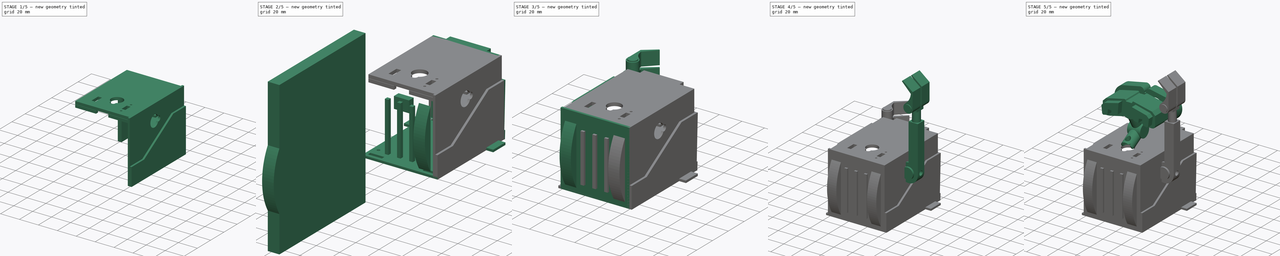
[diagram: build sequence overview — one tinted view per stage of 5, left to right]
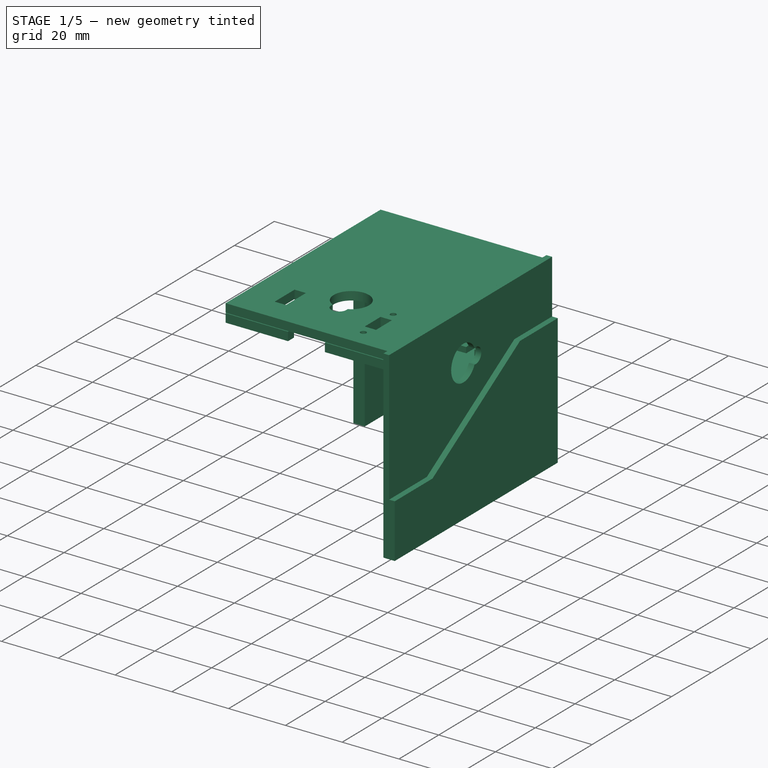
[diagram: stage 1 of 5 — iso view after this stage's code; geometry added in this stage tinted green]
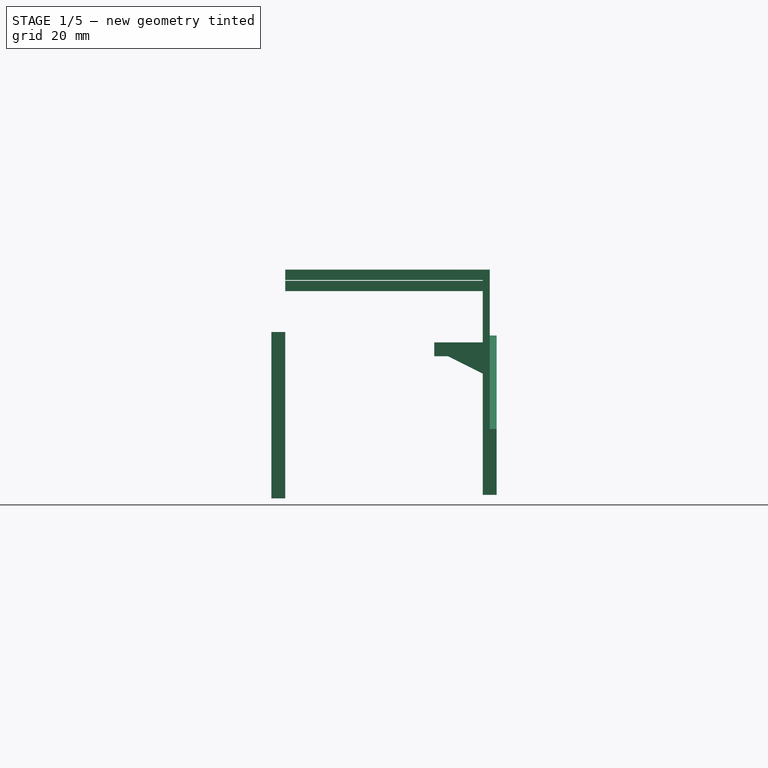
[diagram: stage 1 of 5 — front view after this stage's code; geometry added in this stage tinted green]
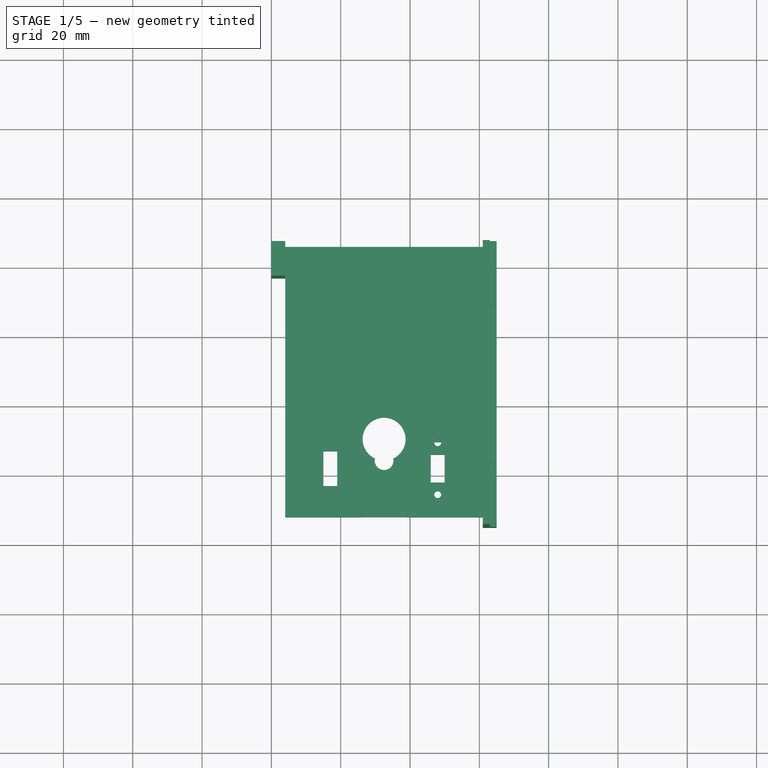
[diagram: stage 1 of 5 — top view after this stage's code; geometry added in this stage tinted green]
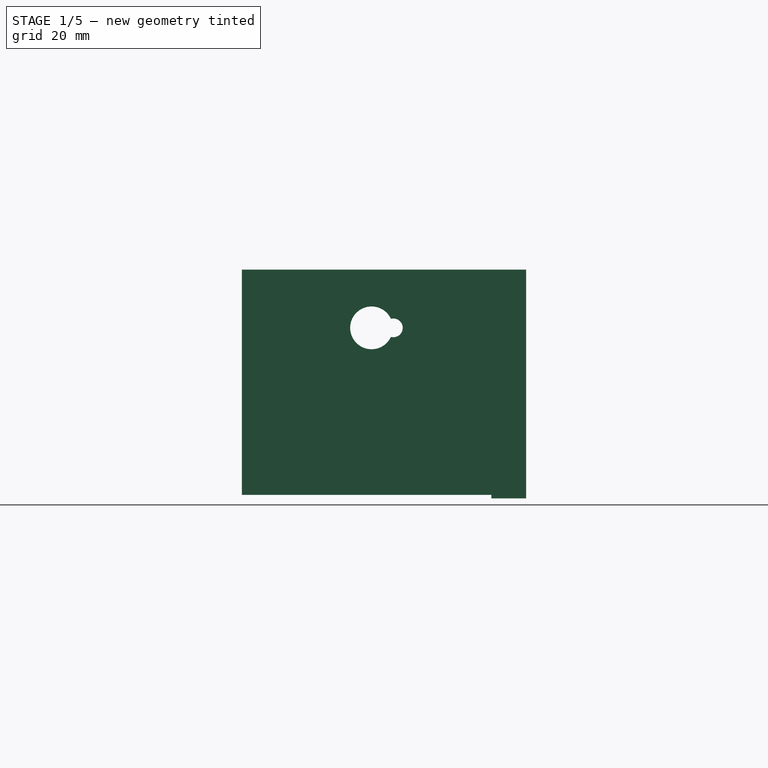
[diagram: stage 1 of 5 — right view after this stage's code; geometry added in this stage tinted green]
FCSTD DOCUMENT  (FreeCAD 1.0R38641 +468 (Git))
Label: zumo-wall-e
License: All rights reserved
LicenseURL: http://en.wikipedia.org/wiki/All_rights_reserved
objects: Part::Box×39, Part::Cut×31, Part::Extrusion×26, Sketcher::SketchObject×21, Part::Cylinder×18, Part::Feature×17, App::DocumentObjectGroup×17, Part::MultiFuse×15, App::Part×2, Part::Mirroring×2, PartDesign::Pad×1
note: 193 computed .brp shape members not serialized (recipe doc carries the construction recipe); baked Part::Feature solids carry a one-line shape summary decoded from their .brp

FEATURE [Part::Box] Box009  label="Cube009"
  AttacherType = Attacher::AttachEngine3D
  Height = 65
  Length = 4
  Placement = pos=(0,-75,0) rot=(0,0,1;0rad)
  Width = 82
FEATURE [Part::Box] Box013  label="back hole"
  AttacherType = Attacher::AttachEngine3D
  Height = 10
  Length = 10
  Placement = pos=(2,-67,0) rot=(0,0,1;0rad)
  Width = 10
FEATURE [Part::Feature] Fusion007001  label="Servo-sg90-Top"
  Placement = pos=(32.5,-67,38.3) rot=(0,0,1;0rad)
  shape: bbox 11.8 x 32.4 x 29.9 mm, 77 faces (baked)
FEATURE [Part::Box] Box020  label="servo platform"
  AttacherType = Attacher::AttachEngine3D
  Height = 2
  Length = 14
  Placement = pos=(4,-51,40) rot=(0,0,1;0rad)
  Width = 37
FEATURE [Sketcher::SketchObject] Sketch001
  ArcFitTolerance = 0
  AttachmentSupport = -> [Box020]
  FullyConstrained = true
  MakeInternals = false
  MapMode = 3
  Placement = pos=(4,-51,40) rot=(1,0,0;1.5708rad)
  sketch-geometry (3):
    g0: LineSegment StartX=0 StartY=0 StartZ=0 EndX=10 EndY=0 EndZ=0
    g1: LineSegment StartX=10 StartY=0 StartZ=0 EndX=0 EndY=-5 EndZ=0
    g2: LineSegment StartX=0 StartY=-5 StartZ=0 EndX=0 EndY=0 EndZ=0
  constraints (8):
    c: Coincident(g0,g-1)
    c: PointOnObject(g0,g-1)
    c: Coincident(g1,g0)
    c: PointOnObject(g1,g-2)
    c: Coincident(g2,g1)
    c: Coincident(g2,g0)
    c: Distance(g0,g0) = 10
    c: Distance(g0,g1) = 5
FEATURE [Part::Extrusion] Extrude007  label="renfort support servo"
  Base = -> Sketch001
  Dir = (0,-1,2e-16)
  DirMode = 2
  FaceMakerClass = Part::FaceMakerBullseye
  FaceMakerMode = 3
  LengthFwd = 37
  LengthRev = 0
  Placement = pos=(0,37,0) rot=(0,0,1;0rad)
  Solid = true
  Symmetric = false
FEATURE [Sketcher::SketchObject] Sketch002
  ArcFitTolerance = 0
  AttachmentSupport = -> [Box020]
  FullyConstrained = true
  MakeInternals = false
  MapMode = 5
  Placement = pos=(4,-51,42) rot=(0,0,1;0rad)
  sketch-geometry (21):
    g0: LineSegment StartX=0 StartY=0 StartZ=0 EndX=0 EndY=7.3 EndZ=0
    g1: LineSegment StartX=0 StartY=7.3 StartZ=0 EndX=5.9 EndY=7.3 EndZ=0
    g2: LineSegment StartX=5.9 StartY=7.3 StartZ=0 EndX=5.9 EndY=2.1 EndZ=0
    g3: LineSegment StartX=5.9 StartY=2.1 StartZ=0 EndX=8.8 EndY=2.1 EndZ=0
    g4: LineSegment StartX=8.8 StartY=2.1 StartZ=0 EndX=8.8 EndY=7.3 EndZ=0
    g5: LineSegment StartX=8.8 StartY=7.3 StartZ=0 EndX=14 EndY=7.3 EndZ=0
    g6: LineSegment StartX=14 StartY=7.3 StartZ=0 EndX=14 EndY=0 EndZ=0
    g7: LineSegment StartX=14 StartY=0 StartZ=0 EndX=0 EndY=0 EndZ=0
    g8: LineSegment [constr] StartX=5.9 StartY=7.3 StartZ=0 EndX=8.8 EndY=7.3 EndZ=0
    g9: LineSegment [constr] StartX=14 StartY=7.3 StartZ=0 EndX=14 EndY=30.2 EndZ=0
    g10: LineSegment [constr] StartX=8.8 StartY=7.3 StartZ=0 EndX=8.8 EndY=30.2 EndZ=0
    g11: LineSegment StartX=14 StartY=30.2 StartZ=0 EndX=8.8 EndY=30.2 EndZ=0
    g12: LineSegment StartX=14 StartY=30.2 StartZ=0 EndX=14 EndY=37 EndZ=0
    g13: LineSegment StartX=14 StartY=37 StartZ=0 EndX=0 EndY=37 EndZ=0
    g14: LineSegment [constr] StartX=8.8 StartY=30.2 StartZ=0 EndX=5.9 EndY=30.2 EndZ=0
    g15: LineSegment StartX=5.9 StartY=30.2 StartZ=0 EndX=0 EndY=30.2 EndZ=0
    g16: LineSegment StartX=0 StartY=30.2 StartZ=0 EndX=0 EndY=37 EndZ=0
    g17: LineSegment StartX=5.9 StartY=30.2 StartZ=0 EndX=5.9 EndY=35.4 EndZ=0
    g18: LineSegment StartX=5.9 StartY=35.4 StartZ=0 EndX=8.8 EndY=35.4 EndZ=0
    g19: LineSegment StartX=8.8 StartY=35.4 StartZ=0 EndX=8.8 EndY=30.2 EndZ=0
    g20: LineSegment [constr] StartX=5.9 StartY=7.3 StartZ=0 EndX=5.9 EndY=30.2 EndZ=0
  constraints (58):
    c: Coincident(g0,g-1)
    c: PointOnObject(g0,g-2)
    c: Coincident(g1,g0)
    c: Horizontal(g1)
    c: Coincident(g2,g1)
    c: Vertical(g2)
    c: Coincident(g3,g2)
    c: Horizontal(g3)
    c: Vertical(g4)
    c: Coincident(g5,g4)
    c: Horizontal(g5)
    c: Coincident(g6,g5)
    c: PointOnObject(g6,g-1)
    c: Vertical(g6)
    c: Coincident(g7,g6)
    c: Coincident(g7,g0)
    c: Distance(g0,g6) = 14
    c: Coincident(g3,g4)
    c: Coincident(g8,g1)
    c: Coincident(g8,g4)
    c: Horizontal(g8)
    c: Distance(g5,g6) = 7.3
    c: Distance(g3,g6) = 5.2
    c: Distance(g4,g3) = 5.2
    c: Distance(g3,g2) = 2.9
    c: Coincident(g9,g5)
    c: Vertical(g9)
    c: Distance(g5,g9) = 22.9
    c: Coincident(g10,g4)
    c: Vertical(g10)
    c: Coincident(g11,g9)
    c: Horizontal(g11)
    c: Coincident(g10,g11)
    c: Coincident(g12,g11)
    c: Vertical(g12)
    c: Coincident(g13,g12)
    c: PointOnObject(g13,g-2)
    c: Horizontal(g13)
    c: Distance(g12,g11) = 6.8
    c: Coincident(g14,g11)
    c: Horizontal(g14)
    c: Coincident(g15,g14)
    c: PointOnObject(g15,g-2)
    c: Horizontal(g15)
    c: PointOnObject(g16,g15)
    c: Coincident(g16,g13)
    c: Vertical(g16)
    c: Coincident(g17,g15)
    c: Vertical(g17)
    c: Coincident(g18,g17)
    c: Horizontal(g18)
    c: Coincident(g19,g18)
    c: Coincident(g19,g11)
    c: Vertical(g19)
    c: Coincident(g20,g1)
    c: Coincident(g20,g15)
    c: Vertical(g20)
    c: Equal(g19,g4)
FEATURE [Part::Extrusion] Extrude008  label="fixation servo"
  Base = -> Sketch002
  Dir = (0,0,1)
  DirMode = 2
  FaceMakerClass = Part::FaceMakerBullseye
  FaceMakerMode = 3
  LengthFwd = 2
  LengthRev = 0
  Solid = true
  Symmetric = false
FEATURE [Sketcher::SketchObject] Sketch003
  ArcFitTolerance = 0
  FullyConstrained = false
  MakeInternals = false
  MapMode = 5
  Placement = pos=(1.8,-21,48.2) rot=(0.707107,0,-0.707107;3.14159rad)
  sketch-geometry (6):
    g0: Circle [constr] CenterX=0 CenterY=16.5916 CenterZ=0 NormalX=0 NormalY=0 NormalZ=1 AngleXU=0 Radius=6.2
    g1: Circle [constr] CenterX=0 CenterY=10.2965 CenterZ=0 NormalX=0 NormalY=0 NormalZ=1 AngleXU=0 Radius=2.7
    g2: GeomPoint [constr] X=5.99479 Y=15.0097 Z=0
    g3: GeomPoint [constr] X=2.69398 Y=10.1164 Z=0
    g4: ArcOfCircle CenterX=0 CenterY=10.2968 CenterZ=0 NormalX=0 NormalY=0 NormalZ=1 AngleXU=0 Radius=2.69992 StartAngle=2.87822 EndAngle=6.54656
    g5: ArcOfCircle CenterX=0 CenterY=16.5916 CenterZ=0 NormalX=0 NormalY=0 NormalZ=1 AngleXU=0 Radius=6.16968 StartAngle=5.14861 EndAngle=10.5593
  constraints (11):
    c: PointOnObject(g0,g-2)
    c: PointOnObject(g2,g0)
    c: Distance(g0,g2) = 6.2
    c: PointOnObject(g3,g1)
    c: PointOnObject(g1,g-2)
    c: Distance(g1,g3) = 2.7
    c: PointOnObject(g4,g-2)
    c: PointOnObject(g4,g1)
    c: Coincident(g5,g0)
    c: Coincident(g5,g4)
    c: Coincident(g5,g4)
FEATURE [Part::Extrusion] Extrude009  label="servo hole"
  Base = -> Sketch003
  Dir = (-1,0,-2e-16)
  DirMode = 2
  FaceMakerClass = Part::FaceMakerBullseye
  FaceMakerMode = 3
  LengthFwd = -4
  LengthRev = 0
  Solid = true
  Symmetric = false
FEATURE [Part::MultiFuse] Fusion007003  label="support servo"
  Shapes = -> [Box020,Extrude008,Extrude007]
FEATURE [App::DocumentObjectGroup] Group003  label="Back"
  Group = -> [Box014,Cut005,Cut006,Box017,Box018,Box019,Box026]
FEATURE [App::DocumentObjectGroup] Group005  label="Bottom"
  Group = -> [Extrude]
FEATURE [Sketcher::SketchObject] Sketch007
  ArcFitTolerance = 0
  AttachmentSupport = -> [Box014]
  FullyConstrained = false
  MakeInternals = false
  MapMode = 5
  Placement = pos=(2,-75,65) rot=(0,0,1;0rad)
  sketch-geometry (15):
    g0: LineSegment StartX=2 StartY=2 StartZ=0 EndX=59 EndY=2 EndZ=0
    g1: LineSegment StartX=59 StartY=2 StartZ=0 EndX=59 EndY=80 EndZ=0
    g2: LineSegment StartX=59 StartY=80 StartZ=0 EndX=2 EndY=80 EndZ=0
    g3: LineSegment StartX=2 StartY=80 StartZ=0 EndX=2 EndY=2 EndZ=0
    g4: LineSegment [constr] StartX=2 StartY=2 StartZ=0 EndX=0 EndY=2 EndZ=0
    g5: LineSegment [constr] StartX=2 StartY=2 StartZ=0 EndX=2 EndY=0 EndZ=0
    g6: Circle [constr] CenterX=30.53 CenterY=24.527 CenterZ=0 NormalX=0 NormalY=0 NormalZ=1 AngleXU=0 Radius=6.2
    g7: GeomPoint [constr] X=36.7286 Y=24.3957 Z=0
    g8: LineSegment [constr] StartX=30.53 StartY=24.527 StartZ=0 EndX=30.53 EndY=18.2993 EndZ=0
    g9: Circle [constr] CenterX=30.53 CenterY=18.2993 CenterZ=0 NormalX=0 NormalY=0 NormalZ=1 AngleXU=0 Radius=2.7
    g10: GeomPoint [constr] X=33.052 Y=17.3352 Z=0
    g11: GeomPoint [constr] X=27.9005 Y=18.9122 Z=0
    g12: GeomPoint [constr] X=33.1595 Y=18.9122 Z=0
    g13: ArcOfCircle CenterX=30.53 CenterY=24.527 CenterZ=0 NormalX=0 NormalY=0 NormalZ=1 AngleXU=0 Radius=6.2 StartAngle=5.15037 EndAngle=10.5576
    g14: ArcOfCircle CenterX=30.53 CenterY=18.2993 CenterZ=0 NormalX=0 NormalY=0 NormalZ=1 AngleXU=0 Radius=2.7 StartAngle=2.91257 EndAngle=6.5122
  constraints (34):
    c: Coincident(g0,g1)
    c: Coincident(g1,g2)
    c: Coincident(g2,g3)
    c: Coincident(g3,g0)
    c: Horizontal(g0)
    c: Horizontal(g2)
    c: Vertical(g1)
    c: Vertical(g3)
    c: Coincident(g4,g0)
    c: PointOnObject(g4,g-2)
    c: Horizontal(g4)
    c: Coincident(g5,g0)
    c: PointOnObject(g5,g-1)
    c: Vertical(g5)
    c: Distance(g4) = 2
    c: Distance(g0,g5) = 2
    c: Distance(g0,g0) = 57
    c: Distance(g0,g1) = 78
    c: PointOnObject(g7,g6)
    c: Distance(g6,g7) = 6.2
    c: Coincident(g8,g6)
    c: Vertical(g8)
    c: Coincident(g9,g8)
    c: PointOnObject(g10,g9)
    c: Distance(g9,g10) = 2.7
    c: PointOnObject(g11,g6)
    c: PointOnObject(g11,g9)
    c: PointOnObject(g12,g6)
    c: PointOnObject(g12,g9)
    c: Coincident(g13,g6)
    c: Coincident(g13,g12)
    c: Coincident(g14,g8)
    c: Coincident(g14,g13)
    c: Coincident(g14,g13)
FEATURE [Part::Extrusion] Extrude013
  Base = -> Sketch007
  Dir = (0,0,1)
  DirMode = 2
  FaceMakerClass = Part::FaceMakerBullseye
  FaceMakerMode = 3
  LengthFwd = -3
  LengthRev = 0
  Solid = true
  Symmetric = false
FEATURE [Sketcher::SketchObject] Sketch009
  ArcFitTolerance = 0
  AttachmentSupport = -> [Box014]
  FullyConstrained = false
  MakeInternals = false
  MapMode = 5
  Placement = pos=(2,-75,65) rot=(0,0,1;0rad)
  sketch-geometry (20):
    g0: LineSegment StartX=2 StartY=2 StartZ=0 EndX=59 EndY=2 EndZ=0
    g1: LineSegment StartX=59 StartY=2 StartZ=0 EndX=59 EndY=80 EndZ=0
    g2: LineSegment StartX=59 StartY=80 StartZ=0 EndX=2 EndY=80 EndZ=0
    g3: LineSegment StartX=2 StartY=80 StartZ=0 EndX=2 EndY=2 EndZ=0
    g4: LineSegment [constr] StartX=2 StartY=2 StartZ=0 EndX=0 EndY=2 EndZ=0
    g5: LineSegment [constr] StartX=2 StartY=2 StartZ=0 EndX=2 EndY=0 EndZ=0
    g6: Circle [constr] CenterX=30.53 CenterY=24.527 CenterZ=0 NormalX=0 NormalY=0 NormalZ=1 AngleXU=0 Radius=6.2
    g7: GeomPoint [constr] X=36.7286 Y=24.3957 Z=0
    g8: Circle [constr] CenterX=30.53 CenterY=18.2993 CenterZ=0 NormalX=0 NormalY=0 NormalZ=1 AngleXU=0 Radius=2.7
    g9: GeomPoint [constr] X=33.052 Y=17.3352 Z=0
    g10: GeomPoint [constr] X=27.9005 Y=18.9122 Z=0
    g11: GeomPoint [constr] X=33.1595 Y=18.9122 Z=0
    g12: LineSegment StartX=5 StartY=5 StartZ=0 EndX=56 EndY=5 EndZ=0
    g13: LineSegment StartX=56 StartY=5 StartZ=0 EndX=56 EndY=77 EndZ=0
    g14: LineSegment StartX=56 StartY=77 StartZ=0 EndX=5 EndY=77 EndZ=0
    g15: LineSegment StartX=5 StartY=77 StartZ=0 EndX=5 EndY=5 EndZ=0
    g16: LineSegment [constr] StartX=5 StartY=5 StartZ=0 EndX=5 EndY=2 EndZ=0
    g17: LineSegment [constr] StartX=5 StartY=5 StartZ=0 EndX=2 EndY=5 EndZ=0
    g18: LineSegment [constr] StartX=56 StartY=77 StartZ=0 EndX=56 EndY=80 EndZ=0
    g19: LineSegment [constr] StartX=56 StartY=77 StartZ=0 EndX=59 EndY=77 EndZ=0
  constraints (50):
    c: Coincident(g0,g1)
    c: Coincident(g1,g2)
    c: Coincident(g2,g3)
    c: Coincident(g3,g0)
    c: Horizontal(g0)
    c: Horizontal(g2)
    c: Vertical(g1)
    c: Vertical(g3)
    c: Coincident(g4,g0)
    c: PointOnObject(g4,g-2)
    c: Horizontal(g4)
    c: Coincident(g5,g0)
    c: PointOnObject(g5,g-1)
    c: Vertical(g5)
    c: Distance(g4) = 2
    c: Distance(g0,g5) = 2
    c: Distance(g0,g0) = 57
    c: Distance(g0,g1) = 78
    c: PointOnObject(g7,g6)
    c: Distance(g6,g7) = 6.2
    c: PointOnObject(g9,g8)
    c: Distance(g8,g9) = 2.7
    c: PointOnObject(g10,g6)
    c: PointOnObject(g10,g8)
    c: PointOnObject(g11,g6)
    c: PointOnObject(g11,g8)
    c: Coincident(g12,g13)
    c: Coincident(g13,g14)
    c: Coincident(g14,g15)
    c: Coincident(g15,g12)
    c: Horizontal(g12)
    c: Horizontal(g14)
    c: Vertical(g13)
    c: Vertical(g15)
    c: Coincident(g16,g12)
    c: PointOnObject(g16,g0)
    c: Vertical(g16)
    c: Distance(g12,g16) = 3
    c: Coincident(g17,g12)
    c: PointOnObject(g17,g3)
    c: Horizontal(g17)
    c: Distance(g17,g12) = 3
    c: Coincident(g18,g13)
    c: PointOnObject(g18,g2)
    c: Vertical(g18)
    c: Coincident(g19,g13)
    c: PointOnObject(g19,g1)
    c: Horizontal(g19)
    c: Distance(g13,g19) = 3
    c: Distance(g18,g13) = 3
FEATURE [Part::Extrusion] Extrude014
  Base = -> Sketch009
  Dir = (0,0,1)
  DirMode = 2
  FaceMakerClass = Part::FaceMakerBullseye
  FaceMakerMode = 3
  LengthFwd = 3
  LengthRev = 0
  Placement = pos=(0,0,-6.2) rot=(0,0,1;0rad)
  Solid = true
  Symmetric = false
FEATURE [Part::Box] Box029  label="Cube029"
  AttacherType = Attacher::AttachEngine3D
  Height = 48
  Length = 4
  Placement = pos=(0,-3,-1) rot=(0,0,1;0rad)
  Width = 10
FEATURE [App::DocumentObjectGroup] Group  label="Front Wall-E"
  Group = -> [Group002,Cut014]
FEATURE [Sketcher::SketchObject] Sketch011
  ArcFitTolerance = 1e-06
  FullyConstrained = false
  MakeInternals = false
  MapMode = 5
  Placement = pos=(0,-75,0) rot=(0.57735,-0.57735,-0.57735;2.0944rad)
  sketch-geometry (9):
    g0: LineSegment [constr] StartX=-106.179 StartY=46 StartZ=0 EndX=23.7762 EndY=46 EndZ=0
    g1: LineSegment [constr] StartX=-82 StartY=-6.60203 StartZ=0 EndX=-82 EndY=68.9632 EndZ=0
    g2: LineSegment StartX=-82 StartY=46 StartZ=0 EndX=-63 EndY=46 EndZ=0
    g3: LineSegment [constr] StartX=0 StartY=-1e-16 StartZ=0 EndX=0 EndY=19 EndZ=0
    g4: LineSegment StartX=0 StartY=19 StartZ=0 EndX=-19 EndY=19 EndZ=0
    g5: LineSegment StartX=-63 StartY=46 StartZ=0 EndX=-19 EndY=19 EndZ=0
    g6: LineSegment StartX=0 StartY=19 StartZ=0 EndX=0 EndY=65 EndZ=0
    g7: LineSegment StartX=0 StartY=65 StartZ=0 EndX=-82 EndY=65 EndZ=0
    g8: LineSegment StartX=-82 StartY=65 StartZ=0 EndX=-82 EndY=46 EndZ=0
  constraints (25):
    c: Horizontal(g0)
    c: DistanceY(g-1,g0) = 46
    c: Vertical(g1)
    c: DistanceX(g1,g-1) = 82
    c: Horizontal(g2)
    c: PointOnObject(g2,g0)
    c: PointOnObject(g2,g1)
    c: Distance(g2) = 19
    c: PointOnObject(g3,g-1)
    c: PointOnObject(g3,g-2)
    c: PointOnObject(g3,g-2)
    c: Distance(g3) = 19
    c: Coincident(g4,g3)
    c: Horizontal(g4)
    c: DistanceX(g4,g4) = 19
    c: Coincident(g5,g2)
    c: Coincident(g5,g4)
    c: Coincident(g6,g3)
    c: PointOnObject(g6,g-2)
    c: Distance(g6) = 46
    c: Coincident(g7,g6)
    c: PointOnObject(g7,g1)
    c: Horizontal(g7)
    c: Coincident(g8,g7)
    c: Coincident(g8,g2)
FEATURE [PartDesign::Pad] Pad001
  Direction = (-1,0,0)
  Length = 2
  Length2 = 10
  Placement = pos=(0,-75,0) rot=(0.57735,-0.57735,-0.57735;2.0944rad)
  Profile = -> Sketch011
  ReferenceAxis = -> Sketch011 [N_Axis]
  Refine = true
  Reversed = true
  Suppressed = false
  Type = 0
FEATURE [Part::Cut] Cut  label="Side"
  Base = -> Box009
  Tool = -> Pad001
FEATURE [Part::Cut] Cut015
  Base = -> Cut
  Tool = -> Box013
FEATURE [Part::Cut] Cut016
  Base = -> Cut015
  Tool = -> Extrude009
FEATURE [App::DocumentObjectGroup] Group001  label="Side Left"
  Group = -> [Fusion007003,Cut016]
FEATURE [Part::Mirroring] Part__Mirroring001  label="support servo (Mirror #2)"
  Base = (0,0,0)
  Normal = (1,0,0)
  Placement = pos=(65,0,0) rot=(0,0,1;0rad)
  Source = -> Fusion007003
FEATURE [Part::Mirroring] Part__Mirroring002  label="Cut016 (Mirror #3)"
  Base = (0,0,0)
  Normal = (1,0,0)
  Placement = pos=(65,0,0) rot=(0,0,1;0rad)
  Source = -> Cut016
FEATURE [App::DocumentObjectGroup] Group013  label="Neck"
  Group = -> [Cylinder004,Cylinder003,Cut024]
FEATURE [Part::Box] Box035  label="Cube035"
  AttacherType = Attacher::AttachEngine3D
  Height = 10
  Length = 4
  Placement = pos=(15,-64,60) rot=(0,0,1;0rad)
  Width = 10
FEATURE [Part::Cut] Cut025
  Base = -> Extrude013
  Tool = -> Box035
FEATURE [App::DocumentObjectGroup] Group015  label="Arm Right"
  Group = -> [Cut033,Pocket002004]
FEATURE [Part::Box] Box044  label="Cube044"
  AttacherType = Attacher::AttachEngine3D
  Height = 10
  Length = 13
  Placement = pos=(26,-73,56) rot=(0,0,1;0rad)
  Width = 7
FEATURE [Part::Cut] Cut034
  Base = -> Extrude014
  Tool = -> Box044
FEATURE [App::DocumentObjectGroup] Group007  label="Top"
  Group = -> [Cut034]
FEATURE [App::DocumentObjectGroup] Group016  label="Body"
  Group = -> [Group,Group001,Group004,Group003,Group005,Group007]
FEATURE [Part::Box] Box045  label="Cube045"
  AttacherType = Attacher::AttachEngine3D
  Height = 10
  Length = 4
  Placement = pos=(46,-63,60) rot=(0,0,1;0rad)
  Width = 8
FEATURE [Part::Cut] Cut035
  Base = -> Cut025
  Tool = -> Box045
FEATURE [Part::Cylinder] Cylinder016
  Angle = 360
  AttacherType = Attacher::AttachEngine3D
  FirstAngle = 0
  Height = 10
  Placement = pos=(48,-66.5,58) rot=(0,0,1;0rad)
  Radius = 1
  SecondAngle = 0
FEATURE [Part::Cylinder] Cylinder017
  Angle = 360
  AttacherType = Attacher::AttachEngine3D
  FirstAngle = 0
  Height = 10
  Placement = pos=(48,-51.5,58) rot=(0,0,1;0rad)
  Radius = 1
  SecondAngle = 0
FEATURE [Part::Cut] Cut036
  Base = -> Cut035
  Tool = -> Cylinder016
FEATURE [Part::Cut] Cut037
  Base = -> Cut036
  Tool = -> Cylinder017
FEATURE [App::DocumentObjectGroup] Group006  label="Top moving"
  Group = -> [Sketch007,Cut037]
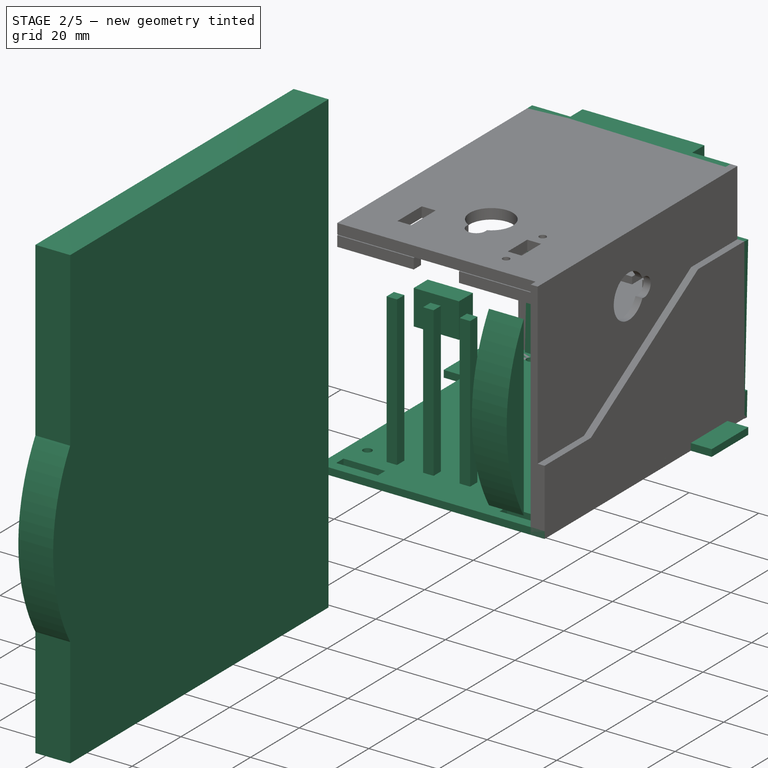
[diagram: stage 2 of 5 — iso view after this stage's code; geometry added in this stage tinted green]
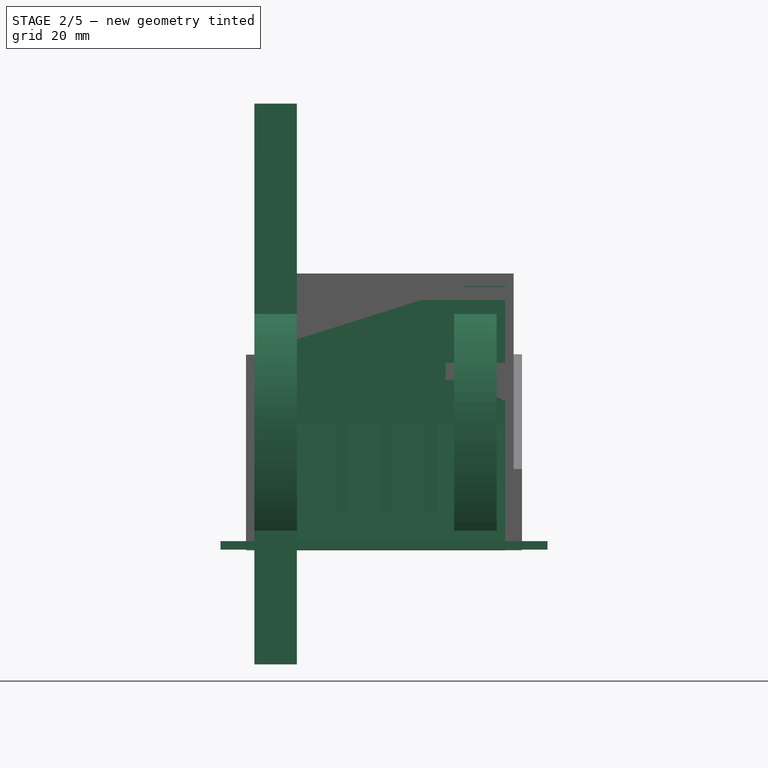
[diagram: stage 2 of 5 — front view after this stage's code; geometry added in this stage tinted green]
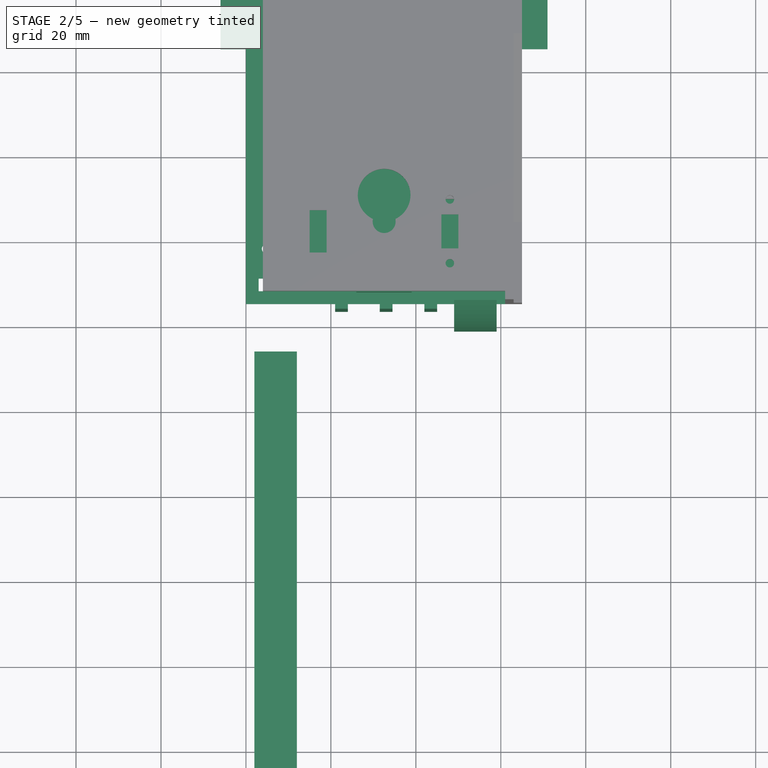
[diagram: stage 2 of 5 — top view after this stage's code; geometry added in this stage tinted green]
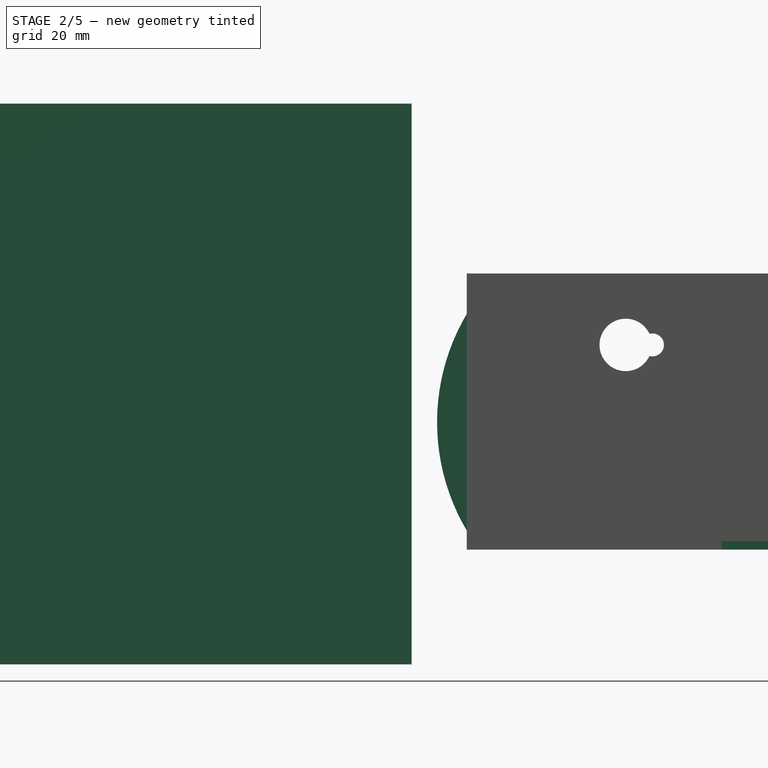
[diagram: stage 2 of 5 — right view after this stage's code; geometry added in this stage tinted green]
FEATURE [Sketcher::SketchObject] Sketch
  ArcFitTolerance = 0
  FullyConstrained = false
  MakeInternals = false
  sketch-geometry (64):
    g0: LineSegment StartX=65 StartY=-75 StartZ=0 EndX=0 EndY=-75 EndZ=0
    g1: LineSegment [constr] StartX=0 StartY=1.5 StartZ=0 EndX=70.3206 EndY=1.5 EndZ=0
    g2: GeomPoint [constr] X=7.5 Y=1.5 Z=0
    g3: GeomPoint [constr] X=57.5 Y=1.5 Z=0
    g4: Circle CenterX=7.5 CenterY=1.5 CenterZ=0 NormalX=0 NormalY=0 NormalZ=1 AngleXU=0 Radius=1.25
    g5: GeomPoint [constr] X=6.25 Y=1.5 Z=0
    g6: GeomPoint [constr] X=8.75 Y=1.5 Z=0
    g7: Circle CenterX=57.5 CenterY=1.5 CenterZ=0 NormalX=0 NormalY=0 NormalZ=1 AngleXU=0 Radius=1.25
    g8: GeomPoint [constr] X=56.25 Y=1.5 Z=0
    g9: GeomPoint [constr] X=58.75 Y=1.5 Z=0
    g10: LineSegment [constr] StartX=71 StartY=-15 StartZ=0 EndX=65 EndY=-15 EndZ=0
    g11: LineSegment [constr] StartX=65 StartY=-15 StartZ=0 EndX=65 EndY=0 EndZ=0
    g12: LineSegment [constr] StartX=65 StartY=0 StartZ=0 EndX=71 EndY=0 EndZ=0
    g13: LineSegment [constr] StartX=71 StartY=0 StartZ=0 EndX=71 EndY=-15 EndZ=0
    g14: LineSegment StartX=65 StartY=-75 StartZ=0 EndX=65 EndY=-15 EndZ=0
    g15: LineSegment [constr] StartX=-6 StartY=0 StartZ=0 EndX=0 EndY=0 EndZ=0
    g16: LineSegment [constr] StartX=0 StartY=0 StartZ=0 EndX=0 EndY=-15 EndZ=0
    g17: LineSegment [constr] StartX=0 StartY=-15 StartZ=0 EndX=-6 EndY=-15 EndZ=0
    g18: LineSegment [constr] StartX=-6 StartY=-15 StartZ=0 EndX=-6 EndY=0 EndZ=0
    g19: LineSegment StartX=0 StartY=-15 StartZ=0 EndX=0 EndY=-75 EndZ=0
    g20: LineSegment [constr] StartX=0 StartY=-72 StartZ=0 EndX=65 EndY=-72 EndZ=0
    g21: LineSegment StartX=3 StartY=-72 StartZ=0 EndX=15 EndY=-72 EndZ=0
    g22: LineSegment StartX=15 StartY=-72 StartZ=0 EndX=15 EndY=-69 EndZ=0
    g23: LineSegment StartX=15 StartY=-69 StartZ=0 EndX=3 EndY=-69 EndZ=0
    g24: LineSegment StartX=3 StartY=-69 StartZ=0 EndX=3 EndY=-72 EndZ=0
    g25: LineSegment StartX=62 StartY=-72 StartZ=0 EndX=50 EndY=-72 EndZ=0
    g26: LineSegment StartX=50 StartY=-72 StartZ=0 EndX=50 EndY=-69 EndZ=0
    g27: LineSegment StartX=50 StartY=-69 StartZ=0 EndX=62 EndY=-69 EndZ=0
    g28: LineSegment StartX=62 StartY=-69 StartZ=0 EndX=62 EndY=-72 EndZ=0
    g29: LineSegment [constr] StartX=16 StartY=0 StartZ=0 EndX=22 EndY=0 EndZ=0
    g30: LineSegment [constr] StartX=22 StartY=0 StartZ=0 EndX=22 EndY=-6 EndZ=0
    g31: LineSegment [constr] StartX=22 StartY=-6 StartZ=0 EndX=16 EndY=-6 EndZ=0
    g32: LineSegment [constr] StartX=16 StartY=-6 StartZ=0 EndX=16 EndY=0 EndZ=0
    g33: LineSegment StartX=16 StartY=0 StartZ=0 EndX=16 EndY=-6 EndZ=0
    g34: LineSegment StartX=16 StartY=-6 StartZ=0 EndX=22 EndY=-6 EndZ=0
    g35: LineSegment StartX=22 StartY=-6 StartZ=0 EndX=22 EndY=0 EndZ=0
    g36: LineSegment [constr] StartX=43 StartY=0 StartZ=0 EndX=49 EndY=0 EndZ=0
    g37: LineSegment [constr] StartX=49 StartY=0 StartZ=0 EndX=49 EndY=-6 EndZ=0
    g38: LineSegment [constr] StartX=49 StartY=-6 StartZ=0 EndX=43 EndY=-6 EndZ=0
    g39: LineSegment [constr] StartX=43 StartY=-6 StartZ=0 EndX=43 EndY=0 EndZ=0
    g40: LineSegment StartX=43 StartY=0 StartZ=0 EndX=43 EndY=-6 EndZ=0
    g41: LineSegment StartX=43 StartY=-6 StartZ=0 EndX=49 EndY=-6 EndZ=0
    g42: LineSegment StartX=49 StartY=-6 StartZ=0 EndX=49 EndY=0 EndZ=0
    g43: LineSegment [constr] StartX=5 StartY=-75 StartZ=0 EndX=5 EndY=0 EndZ=0
    g44: LineSegment [constr] StartX=60 StartY=-75 StartZ=0 EndX=60 EndY=0 EndZ=0
    g45: GeomPoint [constr] X=5 Y=-62 Z=0
    g46: GeomPoint [constr] X=60 Y=-62 Z=0
    g47: GeomPoint [constr] X=5 Y=-60.75 Z=0
    g48: GeomPoint [constr] X=5 Y=-63.25 Z=0
    g49: GeomPoint [constr] X=60 Y=-60.75 Z=0
    g50: GeomPoint [constr] X=60 Y=-63.25 Z=0
    g51: Circle CenterX=5 CenterY=-62 CenterZ=0 NormalX=0 NormalY=0 NormalZ=1 AngleXU=0 Radius=1.25
    g52: Circle CenterX=60 CenterY=-62 CenterZ=0 NormalX=0 NormalY=0 NormalZ=1 AngleXU=0 Radius=1.25
    g53: LineSegment StartX=0 StartY=5 StartZ=0 EndX=65 EndY=5 EndZ=0
    g54: LineSegment StartX=0 StartY=0 StartZ=0 EndX=0 EndY=5 EndZ=0
    g55: LineSegment StartX=16 StartY=0 StartZ=0 EndX=22 EndY=0 EndZ=0
    g56: LineSegment StartX=43 StartY=0 StartZ=0 EndX=49 EndY=0 EndZ=0
    g57: LineSegment StartX=65 StartY=5 StartZ=0 EndX=65 EndY=0 EndZ=0
    g58: LineSegment StartX=0 StartY=0 StartZ=0 EndX=-6 EndY=0 EndZ=0
    g59: LineSegment StartX=-6 StartY=0 StartZ=0 EndX=-6 EndY=-15 EndZ=0
    g60: LineSegment StartX=-6 StartY=-15 StartZ=0 EndX=0 EndY=-15 EndZ=0
    g61: LineSegment StartX=65 StartY=0 StartZ=0 EndX=71 EndY=0 EndZ=0
    g62: LineSegment StartX=71 StartY=0 StartZ=0 EndX=71 EndY=-15 EndZ=0
    g63: LineSegment StartX=71 StartY=-15 StartZ=0 EndX=65 EndY=-15 EndZ=0
  constraints (160):
    c: Horizontal(g0)
    c: DistanceY(g0,g11) = 75
    c: Horizontal(g1)
    c: PointOnObject(g1,g-2)
    c: PointOnObject(g2,g1)
    c: PointOnObject(g3,g1)
    c: Distance(g2,g3) = 50
    c: Distance(g1,g2) = 7.5
    c: PointOnObject(g5,g1)
    c: PointOnObject(g5,g4)
    c: PointOnObject(g6,g1)
    c: PointOnObject(g6,g4)
    c: Distance(g5,g6) = 2.5
    c: PointOnObject(g8,g1)
    c: PointOnObject(g8,g7)
    c: PointOnObject(g9,g7)
    c: PointOnObject(g9,g1)
    c: Distance(g8,g9) = 2.5
    c: Coincident(g10,g11)
    c: Coincident(g11,g12)
    c: Coincident(g12,g13)
    c: Coincident(g13,g10)
    c: Horizontal(g10)
    c: Horizontal(g12)
    c: Vertical(g11)
    c: Vertical(g13)
    c: Distance(g10,g10) = 6
    c: Distance(g12,g10) = 15
    c: Coincident(g14,g0)
    c: Coincident(g14,g10)
    c: Vertical(g14)
    c: Coincident(g15,g16)
    c: Coincident(g16,g17)
    c: Coincident(g17,g18)
    c: Coincident(g18,g15)
    c: Horizontal(g15)
    c: Horizontal(g17)
    c: Vertical(g16)
    c: Vertical(g18)
    c: Distance(g17,g16) = 6
    c: Distance(g15,g17) = 15
    c: Coincident(g19,g0)
    c: Vertical(g19)
    c: Coincident(g15,g-1)
    c: PointOnObject(g0,g-2)
    c: Distance(g0,g0) = 65
    c: PointOnObject(g20,g19)
    c: PointOnObject(g20,g14)
    c: Horizontal(g20)
    c: Distance(g20,g0) = 3
    c: Coincident(g21,g22)
    c: Coincident(g22,g23)
    c: Coincident(g23,g24)
    c: Coincident(g24,g21)
    c: Horizontal(g21)
    c: Horizontal(g23)
    c: Vertical(g22)
    c: Vertical(g24)
    c: PointOnObject(g21,g20)
    c: Distance(g23,g19) = 3
    c: Distance(g22,g21) = 3
    c: Distance(g23,g22) = 12
    c: Coincident(g25,g26)
    c: Coincident(g26,g27)
    c: Coincident(g27,g28)
    c: Coincident(g28,g25)
    c: Horizontal(g25)
    c: Horizontal(g27)
    c: Vertical(g26)
    c: Vertical(g28)
    c: PointOnObject(g25,g20)
    c: Distance(g25,g20) = 3
    c: Distance(g26,g25) = 3
    c: Distance(g26,g27) = 12
    c: Coincident(g29,g30)
    c: Coincident(g30,g31)
    c: Coincident(g31,g32)
    c: Coincident(g32,g29)
    c: Horizontal(g29)
    c: Horizontal(g31)
    c: Vertical(g30)
    c: Vertical(g32)
    c: Distance(g30,g31) = 6
    c: Distance(g29,g30) = 6
    c: PointOnObject(g29,g-1)
    c: Distance(g15,g29) = 22
    c: Coincident(g33,g31)
    c: Coincident(g34,g33)
    c: Coincident(g34,g30)
    c: Coincident(g35,g34)
    c: Coincident(g35,g29)
    c: Coincident(g36,g37)
    c: Coincident(g37,g38)
    c: Coincident(g38,g39)
    c: Coincident(g39,g36)
    c: Horizontal(g36)
    c: Horizontal(g38)
    c: Vertical(g37)
    c: Vertical(g39)
    c: Distance(g38,g36) = 6
    c: Distance(g38,g37) = 6
    c: PointOnObject(g36,g-1)
    c: Distance(g36,g12) = 22
    c: Coincident(g40,g38)
    c: Coincident(g41,g40)
    c: Coincident(g41,g37)
    c: Coincident(g42,g41)
    c: Coincident(g42,g36)
    c: PointOnObject(g43,g0)
    c: PointOnObject(g43,g-1)
    c: Vertical(g43)
    c: Distance(g43,g0) = 5
    c: PointOnObject(g44,g0)
    c: PointOnObject(g44,g-1)
    c: Vertical(g44)
    c: Distance(g44,g0) = 5
    c: PointOnObject(g45,g43)
    c: PointOnObject(g46,g44)
    c: Distance(g43,g45) = 13
    c: Distance(g44,g46) = 13
    c: PointOnObject(g47,g43)
    c: PointOnObject(g48,g43)
    c: PointOnObject(g49,g44)
    c: PointOnObject(g50,g44)
    c: Coincident(g51,g45)
    c: Coincident(g52,g46)
    c: PointOnObject(g47,g51)
    c: PointOnObject(g48,g51)
    c: PointOnObject(g49,g52)
    c: PointOnObject(g50,g52)
    c: Distance(g47,g48) = 2.5
    c: Distance(g49,g50) = 2.5
    c: PointOnObject(g53,g-2)
    c: Horizontal(g53)
    c: Distance(g15,g53) = 5
    c: Coincident(g54,g15)
    c: Coincident(g54,g53)
    c: Coincident(g55,g33)
    c: Coincident(g55,g35)
    c: Coincident(g33,g29)
    c: Coincident(g56,g40)
    c: Coincident(g56,g42)
    c: Coincident(g40,g36)
    c: PointOnObject(g53,g14)
    c: Coincident(g57,g53)
    c: Coincident(g57,g11)
    c: PointOnObject(g57,g-1)
    c: Coincident(g58,g54)
    c: Coincident(g58,g15)
    c: Coincident(g59,g58)
    c: Coincident(g59,g17)
    c: Coincident(g60,g59)
    c: Coincident(g60,g19)
    c: Horizontal(g60)
    c: Coincident(g61,g57)
    c: Coincident(g61,g12)
    c: Coincident(g62,g61)
    c: Coincident(g62,g10)
    c: Coincident(g63,g62)
    c: Coincident(g63,g14)
FEATURE [Part::Extrusion] Extrude
  Base = -> Sketch
  Dir = (0,0,1)
  DirMode = 0
  FaceMakerClass = Part::FaceMakerBullseye
  FaceMakerMode = 3
  LengthFwd = 2
  LengthRev = 0
  Solid = true
  Symmetric = false
FEATURE [App::Part] Part
  Origin = -> Origin
FEATURE [Part::Box] Box  label="Cube"
  AttacherType = Attacher::AttachEngine3D
  Height = 65
  Length = 65
  Placement = pos=(0,3,0) rot=(0,0,1;0rad)
  Width = 2
FEATURE [Part::Box] Box001  label="Cube001"
  AttacherType = Attacher::AttachEngine3D
  Height = 45
  Length = 65
  Placement = pos=(0,2,1) rot=(-1,0,0;0.034907rad)
  Width = 3
FEATURE [Part::Box] Box002  label="Cube002"
  AttacherType = Attacher::AttachEngine3D
  Height = 7
  Length = 65
  Placement = pos=(0,2,0) rot=(-1,0,0;0.034907rad)
  Width = 4
FEATURE [Part::Box] Box003  label="Cube003"
  AttacherType = Attacher::AttachEngine3D
  Height = 2
  Length = 65
  Placement = pos=(0,4,60) rot=(0,0,1;0rad)
  Width = 2
FEATURE [Part::Box] Box004  label="Cube004"
  AttacherType = Attacher::AttachEngine3D
  Height = 2
  Length = 65
  Placement = pos=(0,4,52) rot=(0,0,1;0rad)
  Width = 2
FEATURE [Part::Box] Box005  label="Cube005"
  AttacherType = Attacher::AttachEngine3D
  Height = 21
  Length = 35
  Placement = pos=(15,4,44) rot=(0,0,1;0rad)
  Width = 6
FEATURE [Part::Box] Box006  label="Cube006"
  AttacherType = Attacher::AttachEngine3D
  Height = 24
  Length = 3
  Placement = pos=(31,4,22) rot=(-1,0,0;0.034907rad)
  Width = 4
FEATURE [Part::Box] Box007  label="Cube007"
  AttacherType = Attacher::AttachEngine3D
  Height = 24
  Length = 3
  Placement = pos=(10,4,22) rot=(-1,0,0;0.034907rad)
  Width = 4
FEATURE [Part::Box] Box008  label="Cube008"
  AttacherType = Attacher::AttachEngine3D
  Height = 24
  Length = 3
  Placement = pos=(52,4,22) rot=(-1,0,0;0.034907rad)
  Width = 4
FEATURE [Part::MultiFuse] Fusion
  Placement = pos=(0,2,0) rot=(0,0,1;0rad)
  Shapes = -> [Box,Box001,Box002,Box003,Box004,Box005,Box006,Box007,Box008]
FEATURE [Part::Box] Box011  label="Cube011"
  AttacherType = Attacher::AttachEngine3D
  Height = 20
  Length = 4
  Placement = pos=(0,0,46) rot=(0,0,1;0rad)
  Width = 10
FEATURE [Part::Cut] Cut001
  Base = -> Fusion
  Tool = -> Box011
FEATURE [Part::Cylinder] Cylinder001
  Angle = 360
  AttacherType = Attacher::AttachEngine3D
  FirstAngle = 0
  Height = 10
  Placement = pos=(2,-151,30) rot=(0,1,0;1.5708rad)
  Radius = 50
  SecondAngle = 0
FEATURE [Part::Box] Box015  label="Cube015"
  AttacherType = Attacher::AttachEngine3D
  Height = 132
  Length = 10
  Placement = pos=(2,-194,-27) rot=(0,0,1;0rad)
  Width = 106
FEATURE [Part::Box] Box016  label="Cube016"
  AttacherType = Attacher::AttachEngine3D
  Height = 132
  Length = 10
  Placement = pos=(2,-194,-27) rot=(0,0,1;0rad)
  Width = 106
FEATURE [Part::Cylinder] Cylinder002
  Angle = 360
  AttacherType = Attacher::AttachEngine3D
  FirstAngle = 0
  Height = 10
  Placement = pos=(2,-151,30) rot=(0,1,0;1.5708rad)
  Radius = 50
  SecondAngle = 0
FEATURE [Part::Cut] Cut006
  Base = -> Cylinder002
  Placement = pos=(47,119,0) rot=(0,0,1;0rad)
  Tool = -> Box016
FEATURE [Part::Box] Box017  label="Cube017"
  AttacherType = Attacher::AttachEngine3D
  Height = 43
  Length = 3
  Placement = pos=(21,-77,9) rot=(0,0,1;0rad)
  Width = 3
FEATURE [Part::Box] Box018  label="Cube018"
  AttacherType = Attacher::AttachEngine3D
  Height = 43
  Length = 3
  Placement = pos=(42,-77,9) rot=(0,0,1;0rad)
  Width = 3
FEATURE [Part::Box] Box019  label="Cube019"
  AttacherType = Attacher::AttachEngine3D
  Height = 43
  Length = 3
  Placement = pos=(31.5,-77,9) rot=(0,0,1;0rad)
  Width = 3
FEATURE [Part::Feature] Fusion007004  label="Servo-sg90-Left"
  Placement = pos=(28.5,-21,48.2) rot=(0.707107,0,-0.707107;3.14159rad)
  shape: bbox 29.9 x 32.4 x 11.8 mm, 77 faces (baked)
FEATURE [Part::Box] Box026  label="Cube026"
  AttacherType = Attacher::AttachEngine3D
  Height = 10
  Length = 13
  Placement = pos=(26,-73,44) rot=(0,0,1;0rad)
  Width = 5.7
FEATURE [Part::Box] Box027  label="Cube027"
  AttacherType = Attacher::AttachEngine3D
  Height = 20
  Length = 4
  Placement = pos=(61,0,46) rot=(0,0,1;0rad)
  Width = 10
FEATURE [Part::Cut] Cut012
  Base = -> Cut001
  Tool = -> Box027
FEATURE [Part::Feature] Pocket002001  label="arm-left"
  Placement = pos=(-3.3,-37.6,48.2) rot=(0.57735,0.57735,0.57735;2.0944rad)
  shape: bbox 5 x 22.5 x 8 mm, 19 faces (baked)
FEATURE [Part::Box] Box028  label="Cube028"
  AttacherType = Attacher::AttachEngine3D
  Height = 48
  Length = 4
  Placement = pos=(61,-3,-1) rot=(0,0,1;0rad)
  Width = 10
FEATURE [Part::Cut] Cut013
  Base = -> Cut012
  Tool = -> Box028
FEATURE [Part::Cut] Cut014
  Base = -> Cut013
  Tool = -> Box029
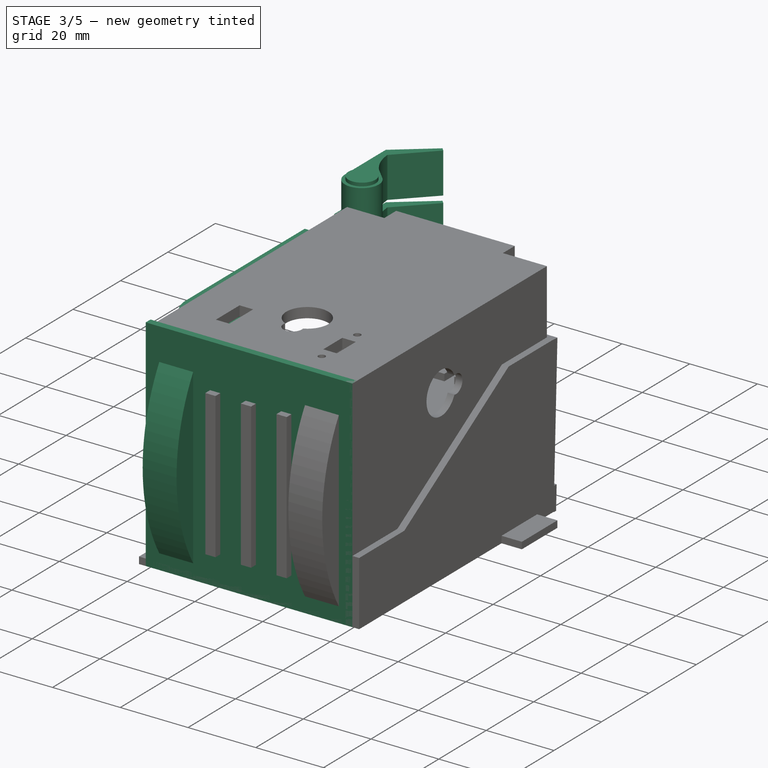
[diagram: stage 3 of 5 — iso view after this stage's code; geometry added in this stage tinted green]
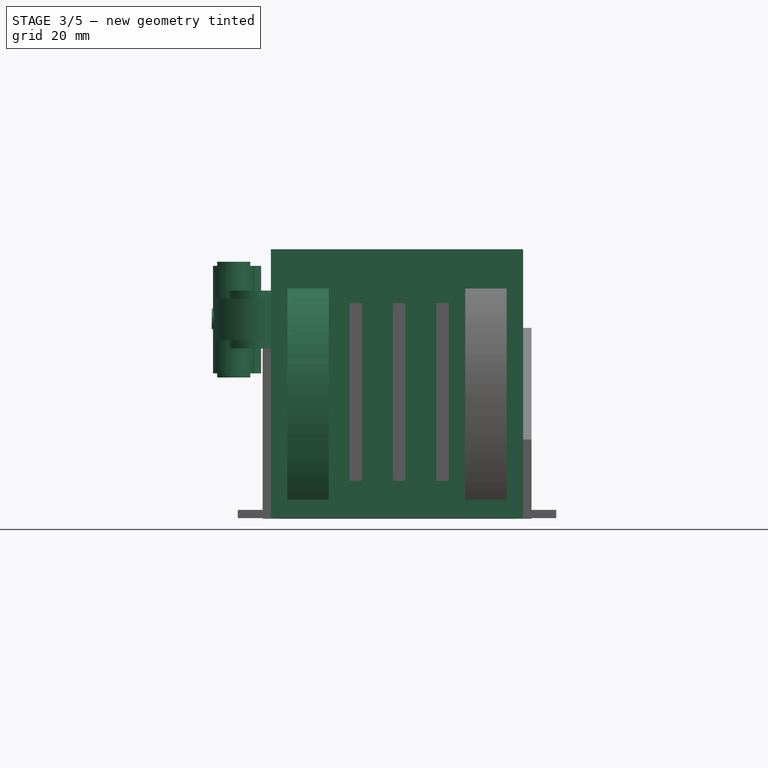
[diagram: stage 3 of 5 — front view after this stage's code; geometry added in this stage tinted green]
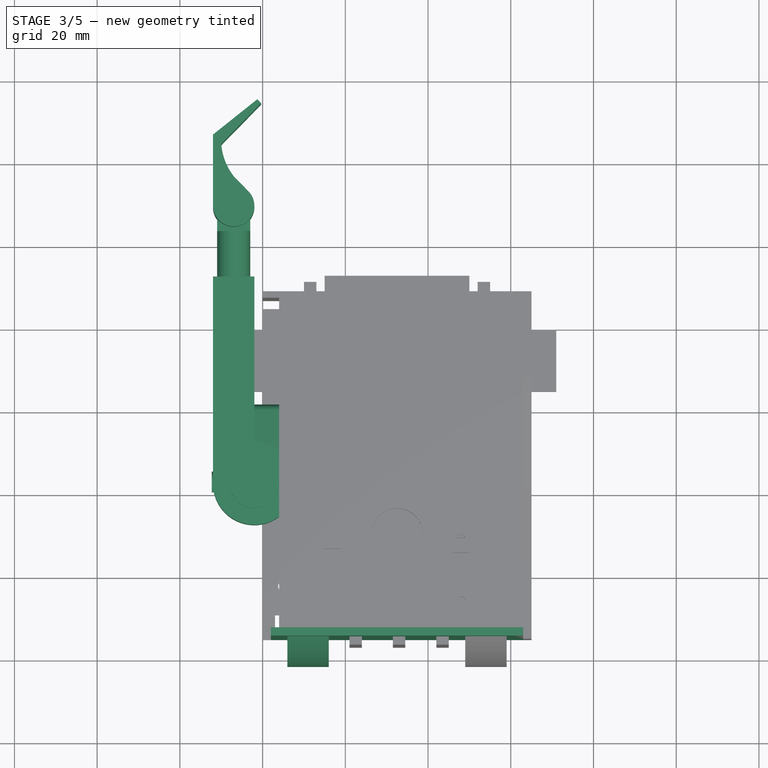
[diagram: stage 3 of 5 — top view after this stage's code; geometry added in this stage tinted green]
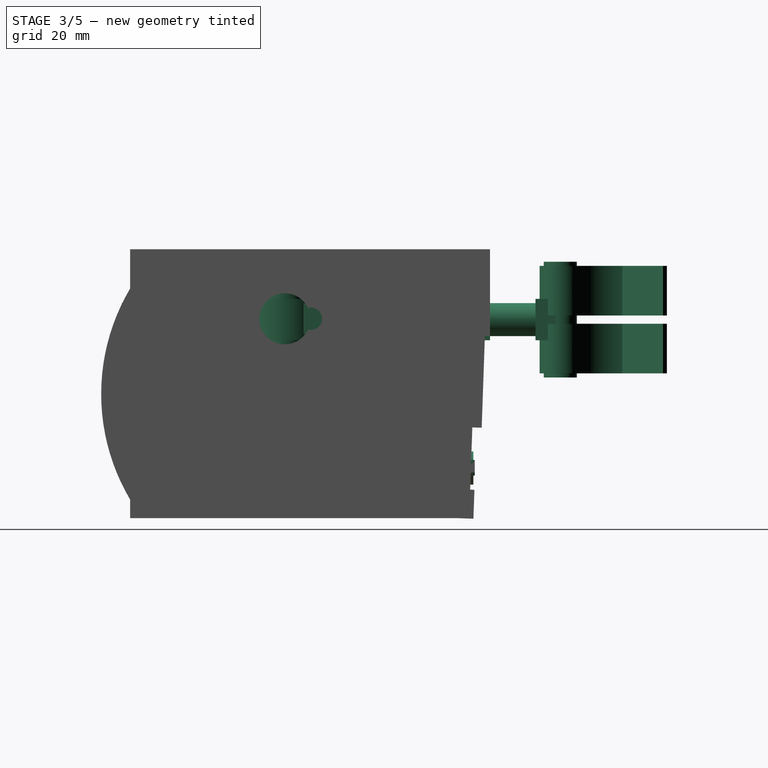
[diagram: stage 3 of 5 — right view after this stage's code; geometry added in this stage tinted green]
FEATURE [Part::Feature] Face  label="W"
  Placement = pos=(40.74,16.32,8.29) rot=(0,0.707107,0.707107;3.14159rad)
  shape: bbox 6.929 x 2e-07 x 3.765 mm, 1 faces, 0 solids (baked)
FEATURE [Part::Feature] Face001  label="A"
  Placement = pos=(40.74,16.32,8.29) rot=(0,0.707107,0.707107;3.14159rad)
  shape: bbox 5.441 x 2e-07 x 3.765 mm, 1 faces, 0 solids (baked)
FEATURE [Part::Feature] Face002  label="L1"
  Placement = pos=(40.74,16.32,8.29) rot=(0,0.707107,0.707107;3.14159rad)
  shape: bbox 5.445 x 2e-07 x 3.765 mm, 1 faces, 0 solids (baked)
FEATURE [Part::Feature] Face003  label="L2"
  Placement = pos=(40.74,16.32,8.29) rot=(0,0.707107,0.707107;3.14159rad)
  shape: bbox 5.445 x 2e-07 x 3.765 mm, 1 faces, 0 solids (baked)
FEATURE [Part::Feature] Face004  label="."
  Placement = pos=(40.74,16.32,9.7) rot=(0,0.707107,0.707107;3.14159rad)
  shape: bbox 1.408 x 2e-07 x 0.937 mm, 1 faces, 0 solids (baked)
FEATURE [Part::Feature] Face005  label="E"
  Placement = pos=(38.74,16.32,8.29) rot=(0,0.707107,0.707107;3.14159rad)
  shape: bbox 5.445 x 2e-07 x 3.765 mm, 1 faces, 0 solids (baked)
FEATURE [Part::Extrusion] Extrude001
  Base = -> Face
  Dir = (0,1,0)
  DirMode = 0
  FaceMakerClass = Part::FaceMakerBullseye
  FaceMakerMode = 3
  LengthFwd = 2
  LengthRev = 0
  Placement = pos=(0,-10,2) rot=(0,0,1;0rad)
  Solid = false
  Symmetric = false
FEATURE [Part::Extrusion] Extrude002
  Base = -> Face001
  Dir = (0,1,0)
  DirMode = 0
  FaceMakerClass = Part::FaceMakerBullseye
  FaceMakerMode = 3
  LengthFwd = 2
  LengthRev = 0
  Placement = pos=(0,-10,2) rot=(0,0,1;0rad)
  Solid = false
  Symmetric = false
FEATURE [Part::Extrusion] Extrude003
  Base = -> Face002
  Dir = (0,1,0)
  DirMode = 0
  FaceMakerClass = Part::FaceMakerBullseye
  FaceMakerMode = 3
  LengthFwd = 2
  LengthRev = 0
  Placement = pos=(0,-10,2) rot=(0,0,1;0rad)
  Solid = false
  Symmetric = false
FEATURE [Part::Extrusion] Extrude004
  Base = -> Face003
  Dir = (0,1,0)
  DirMode = 0
  FaceMakerClass = Part::FaceMakerBullseye
  FaceMakerMode = 3
  LengthFwd = 2
  LengthRev = 0
  Placement = pos=(0,-10,2) rot=(0,0,1;0rad)
  Solid = false
  Symmetric = false
FEATURE [Part::Extrusion] Extrude005
  Base = -> Face004
  Dir = (0,1,0)
  DirMode = 0
  FaceMakerClass = Part::FaceMakerBullseye
  FaceMakerMode = 3
  LengthFwd = 2
  LengthRev = 0
  Placement = pos=(0,-10,2) rot=(0,0,1;0rad)
  Solid = false
  Symmetric = false
FEATURE [Part::Extrusion] Extrude006
  Base = -> Face005
  Dir = (0,1,0)
  DirMode = 0
  FaceMakerClass = Part::FaceMakerBullseye
  FaceMakerMode = 3
  LengthFwd = 2
  LengthRev = 0
  Placement = pos=(0,-10,2) rot=(0,0,1;0rad)
  Solid = false
  Symmetric = false
FEATURE [Part::Cylinder] Cylinder
  Angle = 360
  AttacherType = Attacher::AttachEngine3D
  FirstAngle = 0
  Height = 3
  Placement = pos=(8,8,12.1) rot=(1,0,0;1.5708rad)
  Radius = 4
  SecondAngle = 0
FEATURE [Part::Cut] Cut004
  Base = -> Cylinder
  Tool = -> Extrude006
FEATURE [App::DocumentObjectGroup] Group002  label="text"
  Group = -> [Extrude001,Extrude002,Extrude003,Extrude004,Extrude005,Cut004]
FEATURE [Part::Box] Box014  label="Cube014"
  AttacherType = Attacher::AttachEngine3D
  Height = 65
  Length = 61
  Placement = pos=(2,-75,0) rot=(0,0,1;0rad)
  Width = 2
FEATURE [Part::Cut] Cut005
  Base = -> Cylinder001
  Placement = pos=(4,119,0) rot=(0,0,1;0rad)
  Tool = -> Box015
FEATURE [App::DocumentObjectGroup] Group014  label="Arm left"
  Group = -> [Cut029]
FEATURE [Part::Box] Box040  label="Cube040"
  AttacherType = Attacher::AttachEngine3D
  Height = 10
  Length = 10
  Placement = pos=(-12,-38,43) rot=(0,0,1;0rad)
  Width = 50
FEATURE [Part::Box] Box041  label="Cube041"
  AttacherType = Attacher::AttachEngine3D
  Height = 10
  Length = 8
  Placement = pos=(-11,23,43) rot=(0,0,1;0rad)
  Width = 5
FEATURE [Part::Cylinder] Cylinder012
  Angle = 360
  AttacherType = Attacher::AttachEngine3D
  FirstAngle = 0
  Height = 10
  Placement = pos=(-2,-38,43) rot=(0,0,1;0rad)
  Radius = 10
  SecondAngle = 0
FEATURE [Part::Cylinder] Cylinder013
  Angle = 360
  AttacherType = Attacher::AttachEngine3D
  FirstAngle = 0
  Height = 30
  Placement = pos=(-7,25,48) rot=(1,0,0;1.5708rad)
  Radius = 4
  SecondAngle = 0
FEATURE [Part::Cylinder] Cylinder014
  Angle = 360
  AttacherType = Attacher::AttachEngine3D
  FirstAngle = 0
  Height = 14
  Placement = pos=(-2,-38,41) rot=(0,0,1;0rad)
  Radius = 6
  SecondAngle = 0
FEATURE [Part::Cylinder] Cylinder015
  Angle = 360
  AttacherType = Attacher::AttachEngine3D
  FirstAngle = 0
  Height = 28
  Placement = pos=(-7,29,34) rot=(0,0,1;0rad)
  Radius = 4
  SecondAngle = 0
FEATURE [Part::MultiFuse] Fusion007013
  Shapes = -> [Box040,Cylinder012]
FEATURE [Part::MultiFuse] Fusion007014
  Shapes = -> [Cylinder013,Fusion007013]
FEATURE [Part::MultiFuse] Fusion007015
  Shapes = -> [Cylinder014,Fusion007014]
FEATURE [Part::MultiFuse] Fusion007017
  Shapes = -> [Box041,Fusion007015]
FEATURE [Part::Feature] Pocket002004  label="arm-left001"
  Placement = pos=(-3.3,-37.6,48.2) rot=(0.57735,0.57735,0.57735;2.0944rad)
  shape: bbox 5 x 22.5 x 8 mm, 19 faces (baked)
FEATURE [Sketcher::SketchObject] Sketch022
  ArcFitTolerance = 1e-06
  AttachmentSupport = -> [Cylinder015]
  FullyConstrained = false
  MakeInternals = false
  MapMode = 2
  Placement = pos=(-7,29,34) rot=(0,0,1;0rad)
  sketch-geometry (11):
    g0: LineSegment StartX=-5 StartY=6e-16 StartZ=0 EndX=-5 EndY=14.9947 EndZ=0
    g1: LineSegment [constr] StartX=-5 StartY=14.9947 StartZ=0 EndX=-3 EndY=14.9947 EndZ=0
    g2: LineSegment StartX=3.57086 StartY=3.49985 StartZ=0 EndX=0.231328 EndY=6.86714 EndZ=0
    g3: ArcOfCircle CenterX=11.4339 CenterY=16.0272 CenterZ=0 NormalX=0 NormalY=0 NormalZ=1 AngleXU=0 Radius=14.4708 StartAngle=3.213 EndAngle=3.82701
    g4: ArcOfCircle CenterX=-1.749e-13 CenterY=0 CenterZ=0 NormalX=0 NormalY=0 NormalZ=1 AngleXU=0 Radius=5 StartAngle=3.14159 EndAngle=7.05854
    g5: ArcOfCircle CenterX=-1.749e-13 CenterY=0 CenterZ=0 NormalX=0 NormalY=0 NormalZ=1 AngleXU=0 Radius=5 StartAngle=3.14159 EndAngle=7.05854
    g6: LineSegment StartX=-3 StartY=14.9947 StartZ=0 EndX=6.62789 EndY=24.8191 EndZ=0
    g7: LineSegment StartX=-5 StartY=14.9947 StartZ=0 EndX=-5 EndY=17.1893 EndZ=0
    g8: LineSegment StartX=6.62789 StartY=24.8191 StartZ=0 EndX=5.73146 EndY=25.7559 EndZ=0
    g9: LineSegment StartX=5.73146 StartY=25.7559 StartZ=0 EndX=-5 EndY=17.1893 EndZ=0
    g10: ArcOfCircle CenterX=0 CenterY=0 CenterZ=0 NormalX=0 NormalY=0 NormalZ=1 AngleXU=0 Radius=5 StartAngle=3.14159 EndAngle=7.05854
  constraints (17):
    c: Vertical(g0)
    c: Coincident(g1,g0)
    c: Horizontal(g1)
    c: DistanceX(g1,g1) = 2
    c: Coincident(g3,g1)
    c: Coincident(g3,g2)
    c: Coincident(g5,g4)
    c: Coincident(g5,g4)
    c: Coincident(g5,g2)
    c: Coincident(g6,g1)
    c: Coincident(g7,g0)
    c: Vertical(g7)
    c: Coincident(g8,g6)
    c: Coincident(g9,g8)
    c: Coincident(g9,g7)
    c: Coincident(g10,g0)
    c: Coincident(g10,g4)
FEATURE [Part::Extrusion] Extrude025
  Base = -> Sketch022
  Dir = (0,0,1)
  DirMode = 2
  FaceMakerClass = Part::FaceMakerBullseye
  FaceMakerMode = 3
  LengthFwd = 12
  LengthRev = 0
  Placement = pos=(0,0,1) rot=(0,0,1;0rad)
  Solid = true
  Symmetric = false
FEATURE [Sketcher::SketchObject] Sketch023
  ArcFitTolerance = 1e-06
  AttachmentSupport = -> [Cylinder015]
  FullyConstrained = false
  MakeInternals = false
  MapMode = 2
  Placement = pos=(-7,29,34) rot=(0,0,1;0rad)
  sketch-geometry (11):
    g0: LineSegment StartX=-5 StartY=6e-16 StartZ=0 EndX=-5 EndY=14.9947 EndZ=0
    g1: LineSegment [constr] StartX=-5 StartY=14.9947 StartZ=0 EndX=-3 EndY=14.9947 EndZ=0
    g2: LineSegment StartX=3.57086 StartY=3.49985 StartZ=0 EndX=0.231328 EndY=6.86714 EndZ=0
    g3: ArcOfCircle CenterX=11.4339 CenterY=16.0272 CenterZ=0 NormalX=0 NormalY=0 NormalZ=1 AngleXU=0 Radius=14.4708 StartAngle=3.213 EndAngle=3.82701
    g4: ArcOfCircle CenterX=-1.749e-13 CenterY=0 CenterZ=0 NormalX=0 NormalY=0 NormalZ=1 AngleXU=0 Radius=5 StartAngle=3.14159 EndAngle=7.05854
    g5: ArcOfCircle CenterX=-1.749e-13 CenterY=0 CenterZ=0 NormalX=0 NormalY=0 NormalZ=1 AngleXU=0 Radius=5 StartAngle=3.14159 EndAngle=7.05854
    g6: LineSegment StartX=-3 StartY=14.9947 StartZ=0 EndX=6.62789 EndY=24.8191 EndZ=0
    g7: LineSegment StartX=-5 StartY=14.9947 StartZ=0 EndX=-5 EndY=17.1893 EndZ=0
    g8: LineSegment StartX=6.62789 StartY=24.8191 StartZ=0 EndX=5.73146 EndY=25.7559 EndZ=0
    g9: LineSegment StartX=5.73146 StartY=25.7559 StartZ=0 EndX=-5 EndY=17.1893 EndZ=0
    g10: ArcOfCircle CenterX=0 CenterY=0 CenterZ=0 NormalX=0 NormalY=0 NormalZ=1 AngleXU=0 Radius=5 StartAngle=3.14159 EndAngle=7.05854
  constraints (17):
    c: Vertical(g0)
    c: Coincident(g1,g0)
    c: Horizontal(g1)
    c: DistanceX(g1,g1) = 2
    c: Coincident(g3,g1)
    c: Coincident(g3,g2)
    c: Coincident(g5,g4)
    c: Coincident(g5,g4)
    c: Coincident(g5,g2)
    c: Coincident(g6,g1)
    c: Coincident(g7,g0)
    c: Vertical(g7)
    c: Coincident(g8,g6)
    c: Coincident(g9,g8)
    c: Coincident(g9,g7)
    c: Coincident(g10,g0)
    c: Coincident(g10,g4)
FEATURE [Part::Extrusion] Extrude026
  Base = -> Sketch023
  Dir = (0,0,1)
  DirMode = 2
  FaceMakerClass = Part::FaceMakerBullseye
  FaceMakerMode = 3
  LengthFwd = 12
  LengthRev = 0
  Placement = pos=(0,0,15) rot=(0,0,1;0rad)
  Solid = true
  Symmetric = false
FEATURE [Part::MultiFuse] Fusion007016
  Shapes = -> [Extrude026,Extrude025,Cylinder015]
FEATURE [Part::MultiFuse] Fusion007018
  Shapes = -> [Fusion007016,Fusion007017]
FEATURE [Sketcher::SketchObject] Sketch024
  ArcFitTolerance = 1e-06
  AttachmentSupport = -> [Pocket002004]
  FullyConstrained = false
  MakeInternals = false
  MapMode = 2
  Placement = pos=(-3.3,-37.6,48.2) rot=(0.57735,0.57735,0.57735;2.0944rad)
  sketch-geometry (4):
    g0: ArcOfCircle CenterX=0 CenterY=0 CenterZ=0 NormalX=0 NormalY=0 NormalZ=1 AngleXU=0 Radius=4.5 StartAngle=1.5708 EndAngle=4.71239
    g1: ArcOfCircle CenterX=16.9916 CenterY=0 CenterZ=0 NormalX=0 NormalY=0 NormalZ=1 AngleXU=0 Radius=1.75 StartAngle=4.84368 EndAngle=7.65796
    g2: LineSegment StartX=17.2207 StartY=-1.73494 StartZ=0 EndX=0 EndY=-4.5 EndZ=0
    g3: LineSegment StartX=17.3324 StartY=1.71649 StartZ=0 EndX=0 EndY=4.5 EndZ=0
  constraints (10):
    c: Coincident(g0,g-1)
    c: PointOnObject(g0,g-2)
    c: PointOnObject(g0,g-2)
    c: Diameter(g0) = 9
    c: PointOnObject(g1,g-1)
    c: Diameter(g1) = 3.5
    c: Coincident(g2,g1)
    c: Coincident(g2,g0)
    c: Coincident(g3,g1)
    c: Coincident(g3,g0)
FEATURE [Part::Extrusion] Extrude027
  Base = -> Sketch024
  Dir = (1,0,0)
  DirMode = 2
  FaceMakerClass = Part::FaceMakerBullseye
  FaceMakerMode = 3
  LengthFwd = 10
  LengthRev = 0
  Solid = true
  Symmetric = false
FEATURE [Sketcher::SketchObject] Sketch025
  ArcFitTolerance = 1e-06
  AttachmentSupport = -> [Pocket002004]
  FullyConstrained = true
  MakeInternals = false
  MapMode = 5
  Placement = pos=(-2.3,-37.6,48.2) rot=(0.57735,0.57735,-0.57735;4.18879rad)
  sketch-geometry (1):
    g0: Circle CenterX=0 CenterY=0 CenterZ=0 NormalX=0 NormalY=0 NormalZ=1 AngleXU=0 Radius=2.5
  constraints (2):
    c: Coincident(g0,g-1)
    c: Diameter(g0) = 5
FEATURE [Part::Extrusion] Extrude028
  Base = -> Sketch025
  Dir = (-1,0,0)
  DirMode = 2
  FaceMakerClass = Part::FaceMakerBullseye
  FaceMakerMode = 3
  LengthFwd = 10
  LengthRev = 0
  Solid = true
  Symmetric = false
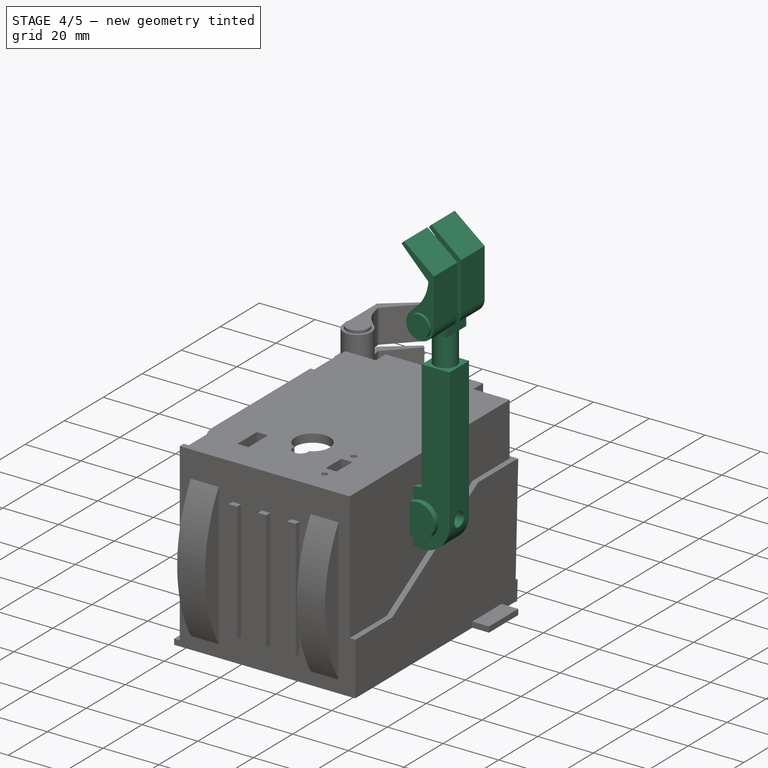
[diagram: stage 4 of 5 — iso view after this stage's code; geometry added in this stage tinted green]
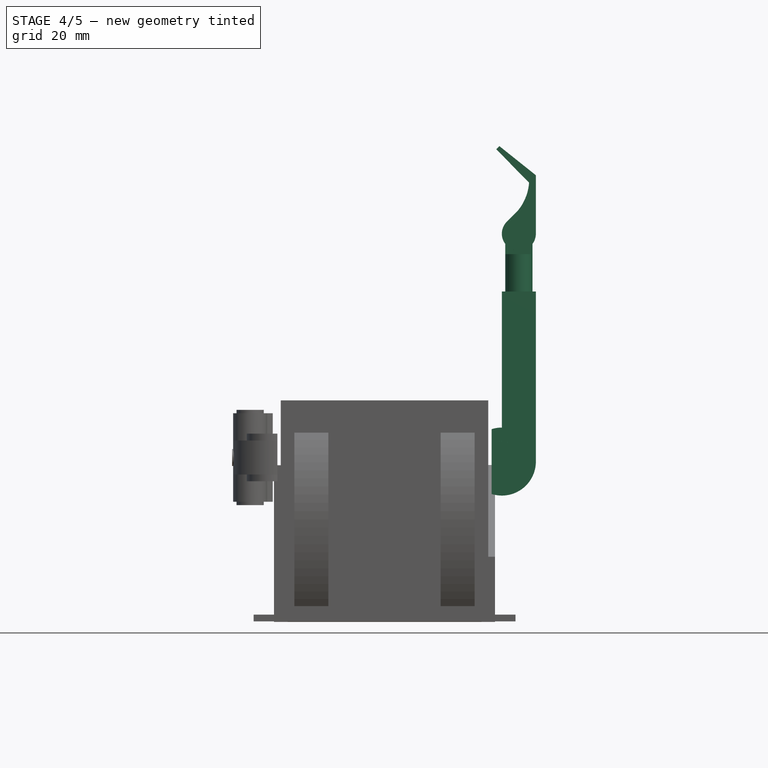
[diagram: stage 4 of 5 — front view after this stage's code; geometry added in this stage tinted green]
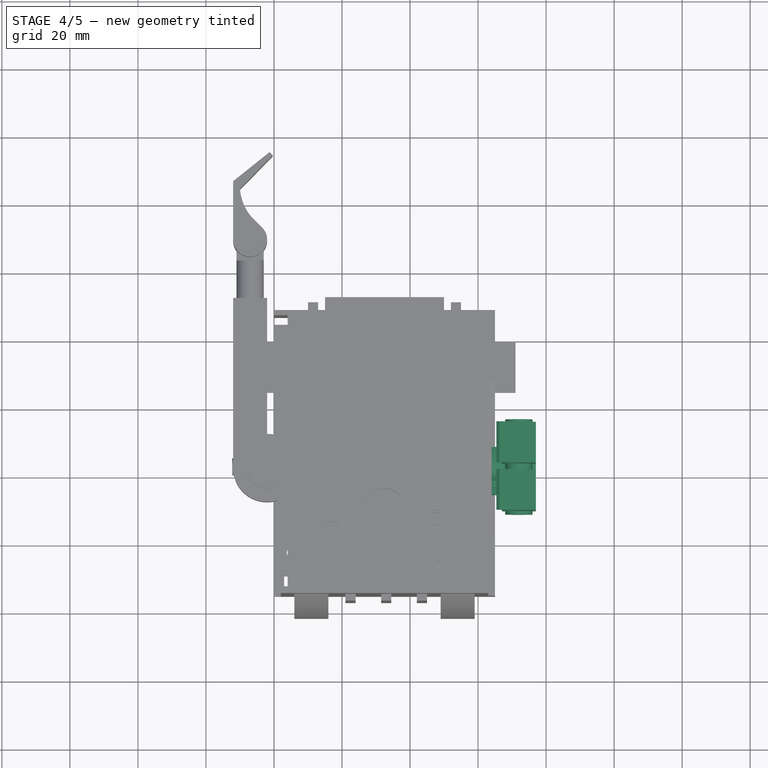
[diagram: stage 4 of 5 — top view after this stage's code; geometry added in this stage tinted green]
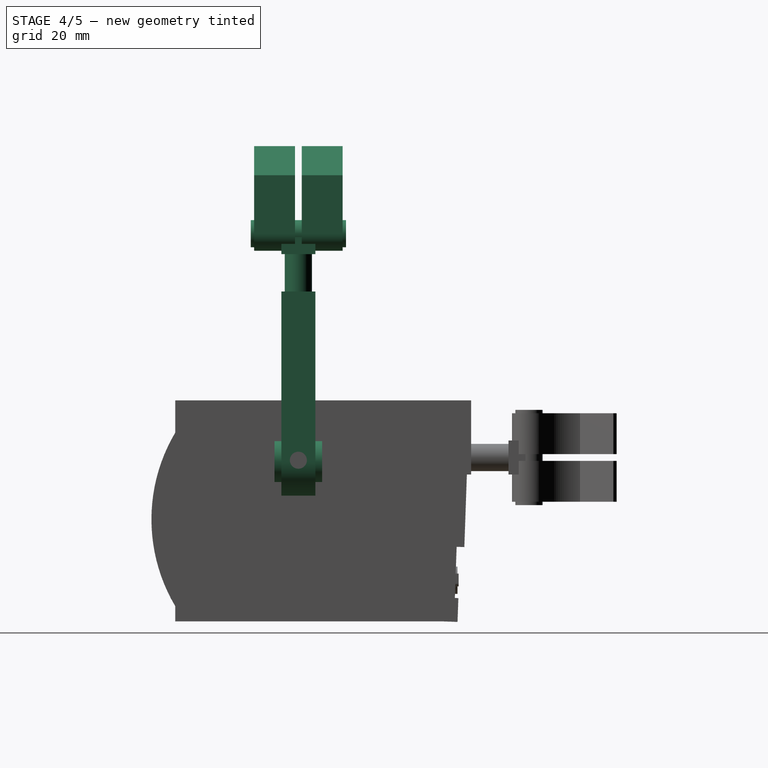
[diagram: stage 4 of 5 — right view after this stage's code; geometry added in this stage tinted green]
FEATURE [Part::Box] Box036  label="Cube036"
  AttacherType = Attacher::AttachEngine3D
  Height = 10
  Length = 10
  Placement = pos=(-12,-38,43) rot=(0,0,1;0rad)
  Width = 50
FEATURE [Part::Cylinder] Cylinder008
  Angle = 360
  AttacherType = Attacher::AttachEngine3D
  FirstAngle = 0
  Height = 10
  Placement = pos=(-2,-38,43) rot=(0,0,1;0rad)
  Radius = 10
  SecondAngle = 0
FEATURE [Part::MultiFuse] Fusion007007
  Shapes = -> [Box036,Cylinder008]
FEATURE [Part::Cylinder] Cylinder009
  Angle = 360
  AttacherType = Attacher::AttachEngine3D
  FirstAngle = 0
  Height = 30
  Placement = pos=(-7,25,48) rot=(1,0,0;1.5708rad)
  Radius = 4
  SecondAngle = 0
FEATURE [Part::MultiFuse] Fusion007008
  Shapes = -> [Cylinder009,Fusion007007]
FEATURE [Part::Cylinder] Cylinder010
  Angle = 360
  AttacherType = Attacher::AttachEngine3D
  FirstAngle = 0
  Height = 14
  Placement = pos=(-2,-38,41) rot=(0,0,1;0rad)
  Radius = 6
  SecondAngle = 0
FEATURE [Part::MultiFuse] Fusion007009
  Shapes = -> [Cylinder010,Fusion007008]
FEATURE [Part::Box] Box037  label="Cube037"
  AttacherType = Attacher::AttachEngine3D
  Height = 10
  Length = 8
  Placement = pos=(-11,23,43) rot=(0,0,1;0rad)
  Width = 5
FEATURE [Part::Cylinder] Cylinder011
  Angle = 360
  AttacherType = Attacher::AttachEngine3D
  FirstAngle = 0
  Height = 28
  Placement = pos=(-7,29,34) rot=(0,0,1;0rad)
  Radius = 4
  SecondAngle = 0
FEATURE [Sketcher::SketchObject] Sketch018
  ArcFitTolerance = 1e-06
  AttachmentSupport = -> [Cylinder011]
  FullyConstrained = false
  MakeInternals = false
  MapMode = 2
  Placement = pos=(-7,29,34) rot=(0,0,1;0rad)
  sketch-geometry (11):
    g0: LineSegment StartX=-5 StartY=6e-16 StartZ=0 EndX=-5 EndY=14.9947 EndZ=0
    g1: LineSegment [constr] StartX=-5 StartY=14.9947 StartZ=0 EndX=-3 EndY=14.9947 EndZ=0
    g2: LineSegment StartX=3.57086 StartY=3.49985 StartZ=0 EndX=0.231328 EndY=6.86714 EndZ=0
    g3: ArcOfCircle CenterX=11.4339 CenterY=16.0272 CenterZ=0 NormalX=0 NormalY=0 NormalZ=1 AngleXU=0 Radius=14.4708 StartAngle=3.213 EndAngle=3.82701
    g4: ArcOfCircle CenterX=-1.749e-13 CenterY=0 CenterZ=0 NormalX=0 NormalY=0 NormalZ=1 AngleXU=0 Radius=5 StartAngle=3.14159 EndAngle=7.05854
    g5: ArcOfCircle CenterX=-1.749e-13 CenterY=0 CenterZ=0 NormalX=0 NormalY=0 NormalZ=1 AngleXU=0 Radius=5 StartAngle=3.14159 EndAngle=7.05854
    g6: LineSegment StartX=-3 StartY=14.9947 StartZ=0 EndX=6.62789 EndY=24.8191 EndZ=0
    g7: LineSegment StartX=-5 StartY=14.9947 StartZ=0 EndX=-5 EndY=17.1893 EndZ=0
    g8: LineSegment StartX=6.62789 StartY=24.8191 StartZ=0 EndX=5.73146 EndY=25.7559 EndZ=0
    g9: LineSegment StartX=5.73146 StartY=25.7559 StartZ=0 EndX=-5 EndY=17.1893 EndZ=0
    g10: ArcOfCircle CenterX=0 CenterY=0 CenterZ=0 NormalX=0 NormalY=0 NormalZ=1 AngleXU=0 Radius=5 StartAngle=3.14159 EndAngle=7.05854
  constraints (17):
    c: Vertical(g0)
    c: Coincident(g1,g0)
    c: Horizontal(g1)
    c: DistanceX(g1,g1) = 2
    c: Coincident(g3,g1)
    c: Coincident(g3,g2)
    c: Coincident(g5,g4)
    c: Coincident(g5,g4)
    c: Coincident(g5,g2)
    c: Coincident(g6,g1)
    c: Coincident(g7,g0)
    c: Vertical(g7)
    c: Coincident(g8,g6)
    c: Coincident(g9,g8)
    c: Coincident(g9,g7)
    c: Coincident(g10,g0)
    c: Coincident(g10,g4)
FEATURE [Part::Extrusion] Extrude021
  Base = -> Sketch018
  Dir = (0,0,1)
  DirMode = 2
  FaceMakerClass = Part::FaceMakerBullseye
  FaceMakerMode = 3
  LengthFwd = 12
  LengthRev = 0
  Placement = pos=(0,0,1) rot=(0,0,1;0rad)
  Solid = true
  Symmetric = false
FEATURE [Sketcher::SketchObject] Sketch019
  ArcFitTolerance = 1e-06
  AttachmentSupport = -> [Cylinder011]
  FullyConstrained = false
  MakeInternals = false
  MapMode = 2
  Placement = pos=(-7,29,34) rot=(0,0,1;0rad)
  sketch-geometry (11):
    g0: LineSegment StartX=-5 StartY=6e-16 StartZ=0 EndX=-5 EndY=14.9947 EndZ=0
    g1: LineSegment [constr] StartX=-5 StartY=14.9947 StartZ=0 EndX=-3 EndY=14.9947 EndZ=0
    g2: LineSegment StartX=3.57086 StartY=3.49985 StartZ=0 EndX=0.231328 EndY=6.86714 EndZ=0
    g3: ArcOfCircle CenterX=11.4339 CenterY=16.0272 CenterZ=0 NormalX=0 NormalY=0 NormalZ=1 AngleXU=0 Radius=14.4708 StartAngle=3.213 EndAngle=3.82701
    g4: ArcOfCircle CenterX=-1.749e-13 CenterY=0 CenterZ=0 NormalX=0 NormalY=0 NormalZ=1 AngleXU=0 Radius=5 StartAngle=3.14159 EndAngle=7.05854
    g5: ArcOfCircle CenterX=-1.749e-13 CenterY=0 CenterZ=0 NormalX=0 NormalY=0 NormalZ=1 AngleXU=0 Radius=5 StartAngle=3.14159 EndAngle=7.05854
    g6: LineSegment StartX=-3 StartY=14.9947 StartZ=0 EndX=6.62789 EndY=24.8191 EndZ=0
    g7: LineSegment StartX=-5 StartY=14.9947 StartZ=0 EndX=-5 EndY=17.1893 EndZ=0
    g8: LineSegment StartX=6.62789 StartY=24.8191 StartZ=0 EndX=5.73146 EndY=25.7559 EndZ=0
    g9: LineSegment StartX=5.73146 StartY=25.7559 StartZ=0 EndX=-5 EndY=17.1893 EndZ=0
    g10: ArcOfCircle CenterX=0 CenterY=0 CenterZ=0 NormalX=0 NormalY=0 NormalZ=1 AngleXU=0 Radius=5 StartAngle=3.14159 EndAngle=7.05854
  constraints (17):
    c: Vertical(g0)
    c: Coincident(g1,g0)
    c: Horizontal(g1)
    c: DistanceX(g1,g1) = 2
    c: Coincident(g3,g1)
    c: Coincident(g3,g2)
    c: Coincident(g5,g4)
    c: Coincident(g5,g4)
    c: Coincident(g5,g2)
    c: Coincident(g6,g1)
    c: Coincident(g7,g0)
    c: Vertical(g7)
    c: Coincident(g8,g6)
    c: Coincident(g9,g8)
    c: Coincident(g9,g7)
    c: Coincident(g10,g0)
    c: Coincident(g10,g4)
FEATURE [Part::Extrusion] Extrude022
  Base = -> Sketch019
  Dir = (0,0,1)
  DirMode = 2
  FaceMakerClass = Part::FaceMakerBullseye
  FaceMakerMode = 3
  LengthFwd = 12
  LengthRev = 0
  Placement = pos=(0,0,15) rot=(0,0,1;0rad)
  Solid = true
  Symmetric = false
FEATURE [Part::Box] Box038  label="Cube038"
  AttacherType = Attacher::AttachEngine3D
  Height = 16
  Length = 6
  Placement = pos=(1,-49,40) rot=(0,0,1;0rad)
  Width = 22
FEATURE [Part::MultiFuse] Fusion007010
  Shapes = -> [Extrude022,Extrude021,Cylinder011]
FEATURE [Part::MultiFuse] Fusion007011
  Shapes = -> [Box037,Fusion007009]
FEATURE [Part::MultiFuse] Fusion007012
  Shapes = -> [Fusion007010,Fusion007011]
FEATURE [Part::Cut] Cut026
  Base = -> Fusion007012
  Placement = pos=(0,0,0.2) rot=(0,0,1;0rad)
  Tool = -> Box038
FEATURE [Sketcher::SketchObject] Sketch020
  ArcFitTolerance = 1e-06
  AttachmentSupport = -> [Pocket002001]
  FullyConstrained = false
  MakeInternals = false
  MapMode = 2
  Placement = pos=(-3.3,-37.6,48.2) rot=(0.57735,0.57735,0.57735;2.0944rad)
  sketch-geometry (4):
    g0: ArcOfCircle CenterX=0 CenterY=0 CenterZ=0 NormalX=0 NormalY=0 NormalZ=1 AngleXU=0 Radius=4.5 StartAngle=1.5708 EndAngle=4.71239
    g1: ArcOfCircle CenterX=16.9916 CenterY=0 CenterZ=0 NormalX=0 NormalY=0 NormalZ=1 AngleXU=0 Radius=1.75 StartAngle=4.84368 EndAngle=7.65796
    g2: LineSegment StartX=17.2207 StartY=-1.73494 StartZ=0 EndX=0 EndY=-4.5 EndZ=0
    g3: LineSegment StartX=17.3324 StartY=1.71649 StartZ=0 EndX=0 EndY=4.5 EndZ=0
  constraints (10):
    c: Coincident(g0,g-1)
    c: PointOnObject(g0,g-2)
    c: PointOnObject(g0,g-2)
    c: Diameter(g0) = 9
    c: PointOnObject(g1,g-1)
    c: Diameter(g1) = 3.5
    c: Coincident(g2,g1)
    c: Coincident(g2,g0)
    c: Coincident(g3,g1)
    c: Coincident(g3,g0)
FEATURE [Part::Extrusion] Extrude023
  Base = -> Sketch020
  Dir = (1,0,0)
  DirMode = 2
  FaceMakerClass = Part::FaceMakerBullseye
  FaceMakerMode = 3
  LengthFwd = 10
  LengthRev = 0
  Solid = true
  Symmetric = false
FEATURE [Part::Cut] Cut027
  Base = -> Cut026
  Tool = -> Extrude023
FEATURE [Part::Box] Box039  label="Cube039"
  AttacherType = Attacher::AttachEngine3D
  Height = 14
  Length = 12
  Placement = pos=(3,-44,42) rot=(0,0,1;0rad)
  Width = 13
FEATURE [Part::Cut] Cut028
  Base = -> Cut027
  Tool = -> Box039
FEATURE [Sketcher::SketchObject] Sketch021
  ArcFitTolerance = 1e-06
  AttachmentSupport = -> [Pocket002001]
  FullyConstrained = true
  MakeInternals = false
  MapMode = 5
  Placement = pos=(-2.3,-37.6,48.2) rot=(0.57735,0.57735,-0.57735;4.18879rad)
  sketch-geometry (1):
    g0: Circle CenterX=0 CenterY=0 CenterZ=0 NormalX=0 NormalY=0 NormalZ=1 AngleXU=0 Radius=2.5
  constraints (2):
    c: Coincident(g0,g-1)
    c: Diameter(g0) = 5
FEATURE [App::DocumentObjectGroup] Group008  label="Servo Left"
  Group = -> [Fusion007004,Pocket002001,Sketch021]
FEATURE [Part::Extrusion] Extrude024
  Base = -> Sketch021
  Dir = (-1,0,0)
  DirMode = 2
  FaceMakerClass = Part::FaceMakerBullseye
  FaceMakerMode = 3
  LengthFwd = 10
  LengthRev = 0
  Solid = true
  Symmetric = false
FEATURE [Part::Box] Box042  label="Cube042"
  AttacherType = Attacher::AttachEngine3D
  Height = 16
  Length = 6
  Placement = pos=(1,-49,40) rot=(0,0,1;0rad)
  Width = 22
FEATURE [Part::Box] Box043  label="Cube043"
  AttacherType = Attacher::AttachEngine3D
  Height = 14
  Length = 12
  Placement = pos=(3,-44,42) rot=(0,0,1;0rad)
  Width = 13
FEATURE [Part::Cut] Cut030
  Base = -> Fusion007018
  Placement = pos=(0,0,0.2) rot=(0,0,1;0rad)
  Tool = -> Box042
FEATURE [Part::Cut] Cut031
  Base = -> Cut030
  Tool = -> Extrude027
FEATURE [Part::Cut] Cut032
  Base = -> Cut031
  Tool = -> Box043
FEATURE [Part::Cut] Cut033
  Base = -> Cut032
  Placement = pos=(65,-87,85) rot=(0,1,1;3.14159rad)
  Tool = -> Extrude028
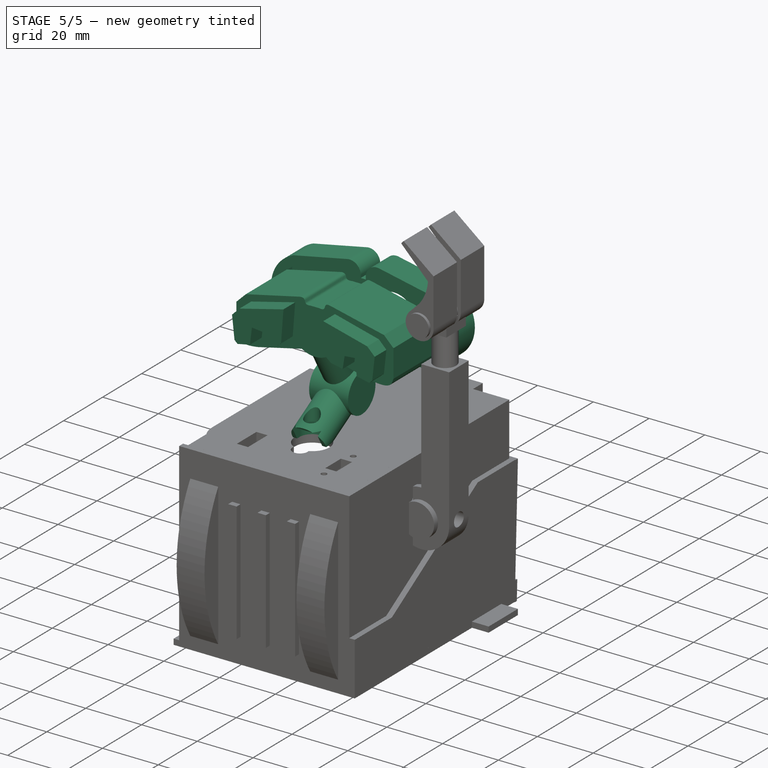
[diagram: stage 5 of 5 — iso view after this stage's code; geometry added in this stage tinted green]
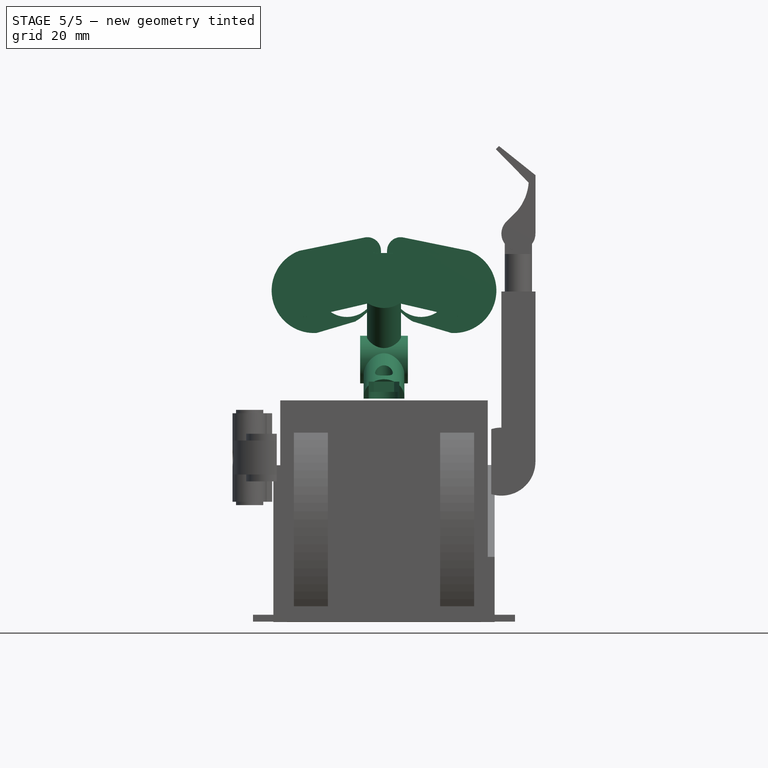
[diagram: stage 5 of 5 — front view after this stage's code; geometry added in this stage tinted green]
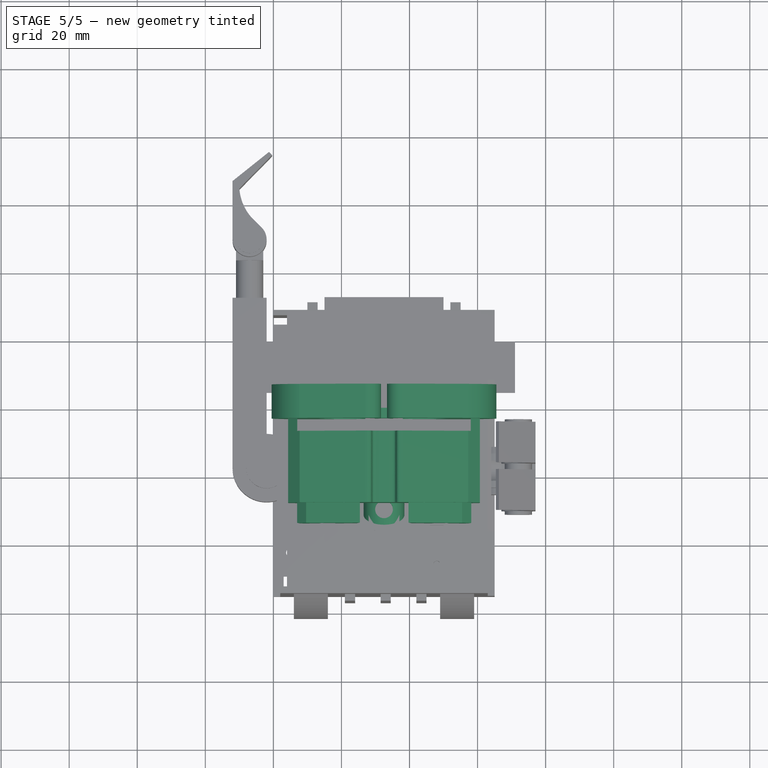
[diagram: stage 5 of 5 — top view after this stage's code; geometry added in this stage tinted green]
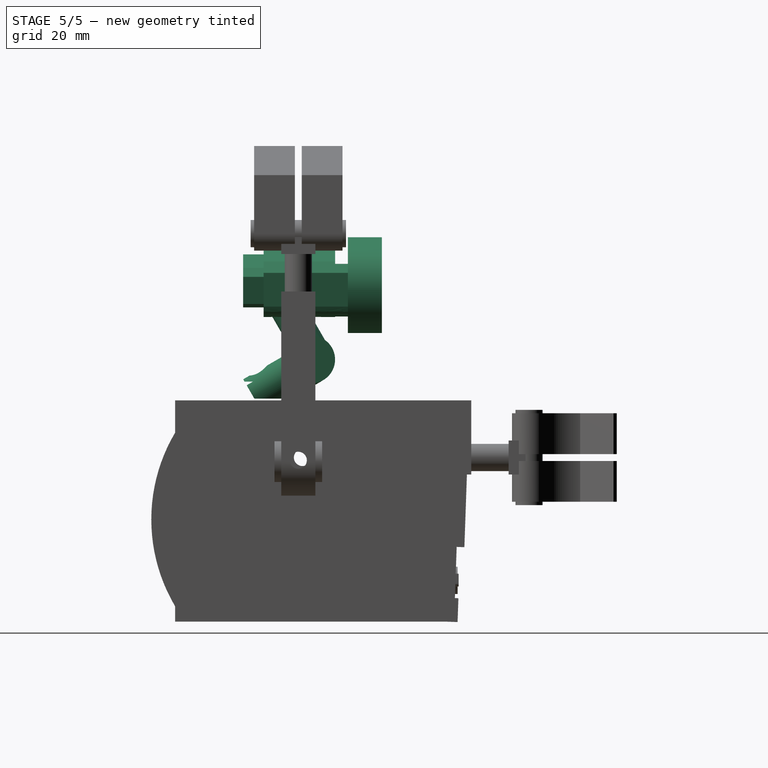
[diagram: stage 5 of 5 — right view after this stage's code; geometry added in this stage tinted green]
FEATURE [App::DocumentObjectGroup] Group004  label="Side Right"
  Group = -> [Part__Mirroring001,Part__Mirroring002]
FEATURE [Part::Feature] Fusion007005  label="Servo-sg90-Right"
  Placement = pos=(36.5,-21,48.2) rot=(1,0,1;3.14159rad)
  shape: bbox 29.9 x 32.4 x 11.8 mm, 77 faces (baked)
FEATURE [Part::Feature] Pocket002002  label="arm-right"
  Placement = pos=(67.7,-38,48) rot=(0,-1,0;1.5708rad)
  shape: bbox 5 x 8 x 22.5 mm, 19 faces (baked)
FEATURE [App::DocumentObjectGroup] Group009  label="Servo Right"
  Group = -> [Fusion007005,Pocket002002]
FEATURE [Part::Feature] Pocket002003  label="arm-top"
  Placement = pos=(32.5,-50.4,70) rot=(1,1,0;3.14159rad)
  shape: bbox 8 x 22.5 x 5 mm, 19 faces (baked)
FEATURE [App::DocumentObjectGroup] Group010  label="Servo Top"
  Group = -> [Fusion007001,Pocket002003]
FEATURE [Part::Feature] Part__Feature  label="PCB"
  Placement = pos=(61.9992,48.7587,12.5016) rot=(0,0,1;0rad)
  shape: bbox 25 x 1.5 x 50 mm, 13 faces (baked)
FEATURE [Part::Feature] Part__Feature001  label="sensor"
  Placement = pos=(61.9992,50.2587,1.5016) rot=(0,0.707107,0.707107;3.14159rad)
  shape: bbox 17.32 x 12 x 17.32 mm, 3408 faces (baked)
FEATURE [Part::Feature] Part__Feature002  label="sensor001"
  Placement = pos=(61.9992,50.2587,23.5016) rot=(-1,0,0;1.5708rad)
  shape: bbox 17.32 x 12 x 17.32 mm, 3408 faces (baked)
FEATURE [Part::Feature] Part__Feature003  label="Grove_L_connector"
  Placement = pos=(67.3992,52.8087,12.4856) rot=(0.57735,0.57735,0.57735;4.18879rad)
  shape: bbox 10.51 x 5.1 x 10 mm, 159 faces (baked)
FEATURE [App::Part] assemlby  label="UltraSonic"
  Group = -> [Part__Feature,Part__Feature001,Part__Feature002,Part__Feature003]
  Origin = -> Origin001
  Placement = pos=(20,-75,160) rot=(0,1,0;1.5708rad)
FEATURE [Sketcher::SketchObject] Sketch012
  ArcFitTolerance = 1e-06
  AttachmentSupport = -> [Part__Feature]
  FullyConstrained = false
  MakeInternals = false
  MapMode = 5
  Placement = pos=(61.9992,50.2587,12.5016) rot=(0,0.707107,0.707107;3.14159rad)
  sketch-geometry (27):
    g0: Circle [constr] CenterX=18.3982 CenterY=85.5082 CenterZ=0 NormalX=0 NormalY=0 NormalZ=1 AngleXU=0 Radius=8
    g1: Circle [constr] CenterX=40.3982 CenterY=85.5082 CenterZ=0 NormalX=0 NormalY=0 NormalZ=1 AngleXU=0 Radius=8
    g2: LineSegment [constr] StartX=18.3982 StartY=85.5082 StartZ=0 EndX=40.3982 EndY=85.5082 EndZ=0
    g3: GeomPoint [constr] X=26.3982 Y=85.5082 Z=0
    g4: GeomPoint [constr] X=32.3982 Y=85.5082 Z=0
    g5: LineSegment [constr] StartX=4.39816 StartY=96.4454 StartZ=0 EndX=4.39816 EndY=73.02 EndZ=0
    g6: LineSegment [constr] StartX=4.39816 StartY=73.02 StartZ=0 EndX=54.3982 EndY=73.02 EndZ=0
    g7: LineSegment [constr] StartX=54.3982 StartY=73.02 StartZ=0 EndX=54.3982 EndY=96.4454 EndZ=0
    g8: LineSegment [constr] StartX=54.3982 StartY=96.4454 StartZ=0 EndX=4.39816 EndY=96.4454 EndZ=0
    g9: LineSegment [constr] StartX=29.3982 StartY=101.543 StartZ=0 EndX=29.3982 EndY=77.8806 EndZ=0
    g10: LineSegment [constr] StartX=29.3982 StartY=101.543 StartZ=0 EndX=74.78 EndY=92.2898 EndZ=0
    g11: LineSegment [constr] StartX=29.3982 StartY=101.543 StartZ=0 EndX=-4.86073 EndY=94.5577 EndZ=0
    g12: Circle [constr] CenterX=29.3982 CenterY=101.543 CenterZ=0 NormalX=0 NormalY=0 NormalZ=1 AngleXU=0 Radius=5.72897
    g13: GeomPoint [constr] X=35.0116 Y=100.398 Z=0
    g14: GeomPoint [constr] X=23.7847 Y=100.398 Z=0
    g15: LineSegment StartX=35.0116 StartY=100.398 StartZ=0 EndX=54.3982 EndY=96.4454 EndZ=0
    g16: ArcOfCircle CenterX=34.3982 CenterY=96.4454 CenterZ=0 NormalX=0 NormalY=0 NormalZ=1 AngleXU=0 Radius=4 StartAngle=1.41682 EndAngle=3.14159
    g17: LineSegment StartX=30.3982 StartY=96.4454 StartZ=0 EndX=30.3982 EndY=88.4454 EndZ=0
    g18: ArcOfCircle CenterX=45.2745 CenterY=88.6405 CenterZ=0 NormalX=0 NormalY=0 NormalZ=1 AngleXU=0 Radius=14.8777 StartAngle=3.1547 EndAngle=4.20309
    g19: Circle CenterX=40.3982 CenterY=85.5082 CenterZ=0 NormalX=0 NormalY=0 NormalZ=1 AngleXU=0 Radius=8.5
    g20: LineSegment StartX=38.0207 StartY=75.651 StartZ=0 EndX=49.3127 EndY=72.3015 EndZ=0
    g21: ArcOfCircle CenterX=50.0463 CenterY=84.7545 CenterZ=0 NormalX=0 NormalY=0 NormalZ=1 AngleXU=0 Radius=12.4746 StartAngle=4.65355 EndAngle=7.49763
    g22: GeomPoint X=24.3982 Y=96.4454 Z=0
    g23: LineSegment [constr] StartX=30.3982 StartY=88.4454 StartZ=0 EndX=30.3982 EndY=96.4454 EndZ=0
    g24: LineSegment [constr] StartX=30.3982 StartY=96.4454 StartZ=0 EndX=28.3982 EndY=96.4454 EndZ=0
    g25: LineSegment [constr] StartX=28.3982 StartY=96.4454 StartZ=0 EndX=28.3982 EndY=88.4454 EndZ=0
    g26: LineSegment [constr] StartX=28.3982 StartY=88.4454 StartZ=0 EndX=30.3982 EndY=88.4454 EndZ=0
  constraints (58):
    c: Diameter(g0) = 16
    c: Diameter(g1) = 16
    c: Coincident(g2,g0)
    c: Coincident(g2,g1)
    c: Horizontal(g2)
    c: PointOnObject(g3,g0)
    c: PointOnObject(g4,g1)
    c: PointOnObject(g3,g2)
    c: PointOnObject(g4,g2)
    c: Distance(g3,g4) = 6
    c: Coincident(g5,g6)
    c: Coincident(g6,g7)
    c: Coincident(g7,g8)
    c: Coincident(g8,g5)
    c: Vertical(g5)
    c: Vertical(g7)
    c: Horizontal(g6)
    c: Horizontal(g8)
    c: Vertical(g9)
    c: Distance(g3,g9) = 3
    c: Distance(g6,g9) = 25
    c: Coincident(g10,g9)
    c: Coincident(g11,g9)
    c: PointOnObject(g7,g10)
    c: PointOnObject(g5,g11)
    c: Coincident(g12,g9)
    c: PointOnObject(g13,g12)
    c: PointOnObject(g13,g10)
    c: PointOnObject(g14,g11)
    c: PointOnObject(g14,g12)
    c: Coincident(g15,g13)
    c: Coincident(g15,g7)
    c: Distance(g5,g9) = 25
    c: Coincident(g16,g13)
    c: Coincident(g17,g16)
    c: Vertical(g17)
    c: PointOnObject(g16,g8)
    c: Distance(g16,g9) = 1
    c: PointOnObject(g16,g8)
    c: Distance(g17,g8) = 8
    c: Coincident(g18,g17)
    c: Distance(g16,g9) = 5
    c: Coincident(g19,g1)
    c: Diameter(g19) = 17
    c: Coincident(g20,g18)
    c: Coincident(g21,g7)
    c: Coincident(g20,g21)
    c: PointOnObject(g22,g8)
    c: Distance(g22,g9) = 5
    c: Coincident(g23,g24)
    c: Coincident(g24,g25)
    c: Coincident(g25,g26)
    c: Coincident(g26,g23)
    c: Vertical(g23)
    c: Vertical(g25)
    c: Horizontal(g24)
    c: Horizontal(g26)
    c: Coincident(g23,g17)
FEATURE [Part::Extrusion] Extrude015
  Base = -> Sketch012
  Dir = (0,1,-2e-16)
  DirMode = 2
  FaceMakerClass = Part::FaceMakerBullseye
  FaceMakerMode = 3
  LengthFwd = 10
  LengthRev = 0
  Placement = pos=(0,-74.51,0) rot=(0,0,1;0rad)
  Solid = true
  Symmetric = false
FEATURE [Sketcher::SketchObject] Sketch013
  ArcFitTolerance = 1e-06
  AttachmentSupport = -> [Part__Feature]
  FullyConstrained = false
  MakeInternals = false
  MapMode = 5
  Placement = pos=(61.9992,50.2587,12.5016) rot=(0,0.707107,0.707107;3.14159rad)
  sketch-geometry (27):
    g0: Circle [constr] CenterX=18.3982 CenterY=85.5082 CenterZ=0 NormalX=0 NormalY=0 NormalZ=1 AngleXU=0 Radius=8
    g1: Circle [constr] CenterX=40.3982 CenterY=85.5082 CenterZ=0 NormalX=0 NormalY=0 NormalZ=1 AngleXU=0 Radius=8
    g2: LineSegment [constr] StartX=18.3982 StartY=85.5082 StartZ=0 EndX=40.3982 EndY=85.5082 EndZ=0
    g3: GeomPoint [constr] X=26.3982 Y=85.5082 Z=0
    g4: GeomPoint [constr] X=32.3982 Y=85.5082 Z=0
    g5: LineSegment [constr] StartX=4.39816 StartY=96.4454 StartZ=0 EndX=4.39816 EndY=73.02 EndZ=0
    g6: LineSegment [constr] StartX=4.39816 StartY=73.02 StartZ=0 EndX=54.3982 EndY=73.02 EndZ=0
    g7: LineSegment [constr] StartX=54.3982 StartY=73.02 StartZ=0 EndX=54.3982 EndY=96.4454 EndZ=0
    g8: LineSegment [constr] StartX=54.3982 StartY=96.4454 StartZ=0 EndX=4.39816 EndY=96.4454 EndZ=0
    g9: LineSegment [constr] StartX=29.3982 StartY=101.543 StartZ=0 EndX=29.3982 EndY=77.8806 EndZ=0
    g10: LineSegment [constr] StartX=29.3982 StartY=101.543 StartZ=0 EndX=74.78 EndY=92.2898 EndZ=0
    g11: LineSegment [constr] StartX=29.3982 StartY=101.543 StartZ=0 EndX=-4.86073 EndY=94.5577 EndZ=0
    g12: Circle [constr] CenterX=29.3982 CenterY=101.543 CenterZ=0 NormalX=0 NormalY=0 NormalZ=1 AngleXU=0 Radius=5.72897
    g13: GeomPoint [constr] X=35.0116 Y=100.398 Z=0
    g14: GeomPoint [constr] X=23.7847 Y=100.398 Z=0
    g15: LineSegment StartX=35.0116 StartY=100.398 StartZ=0 EndX=54.3982 EndY=96.4454 EndZ=0
    g16: ArcOfCircle CenterX=34.3982 CenterY=96.4454 CenterZ=0 NormalX=0 NormalY=0 NormalZ=1 AngleXU=0 Radius=4 StartAngle=1.41682 EndAngle=3.14159
    g17: LineSegment StartX=30.3982 StartY=96.4454 StartZ=0 EndX=30.3982 EndY=88.4454 EndZ=0
    g18: ArcOfCircle CenterX=45.2745 CenterY=88.6405 CenterZ=0 NormalX=0 NormalY=0 NormalZ=1 AngleXU=0 Radius=14.8777 StartAngle=3.1547 EndAngle=4.20309
    g19: Circle CenterX=40.3982 CenterY=85.5082 CenterZ=0 NormalX=0 NormalY=0 NormalZ=1 AngleXU=0 Radius=8.5
    g20: LineSegment StartX=38.0207 StartY=75.651 StartZ=0 EndX=49.3127 EndY=72.3015 EndZ=0
    g21: ArcOfCircle CenterX=50.0463 CenterY=84.7545 CenterZ=0 NormalX=0 NormalY=0 NormalZ=1 AngleXU=0 Radius=12.4746 StartAngle=4.65355 EndAngle=7.49763
    g22: GeomPoint X=24.3982 Y=96.4454 Z=0
    g23: LineSegment [constr] StartX=30.3982 StartY=88.4454 StartZ=0 EndX=30.3982 EndY=96.4454 EndZ=0
    g24: LineSegment [constr] StartX=30.3982 StartY=96.4454 StartZ=0 EndX=28.3982 EndY=96.4454 EndZ=0
    g25: LineSegment [constr] StartX=28.3982 StartY=96.4454 StartZ=0 EndX=28.3982 EndY=88.4454 EndZ=0
    g26: LineSegment [constr] StartX=28.3982 StartY=88.4454 StartZ=0 EndX=30.3982 EndY=88.4454 EndZ=0
  constraints (58):
    c: Diameter(g0) = 16
    c: Diameter(g1) = 16
    c: Coincident(g2,g0)
    c: Coincident(g2,g1)
    c: Horizontal(g2)
    c: PointOnObject(g3,g0)
    c: PointOnObject(g4,g1)
    c: PointOnObject(g3,g2)
    c: PointOnObject(g4,g2)
    c: Distance(g3,g4) = 6
    c: Coincident(g5,g6)
    c: Coincident(g6,g7)
    c: Coincident(g7,g8)
    c: Coincident(g8,g5)
    c: Vertical(g5)
    c: Vertical(g7)
    c: Horizontal(g6)
    c: Horizontal(g8)
    c: Vertical(g9)
    c: Distance(g3,g9) = 3
    c: Distance(g6,g9) = 25
    c: Coincident(g10,g9)
    c: Coincident(g11,g9)
    c: PointOnObject(g7,g10)
    c: PointOnObject(g5,g11)
    c: Coincident(g12,g9)
    c: PointOnObject(g13,g12)
    c: PointOnObject(g13,g10)
    c: PointOnObject(g14,g11)
    c: PointOnObject(g14,g12)
    c: Coincident(g15,g13)
    c: Coincident(g15,g7)
    c: Distance(g5,g9) = 25
    c: Coincident(g16,g13)
    c: Coincident(g17,g16)
    c: Vertical(g17)
    c: PointOnObject(g16,g8)
    c: Distance(g16,g9) = 1
    c: PointOnObject(g16,g8)
    c: Distance(g17,g8) = 8
    c: Coincident(g18,g17)
    c: Distance(g16,g9) = 5
    c: Coincident(g19,g1)
    c: Diameter(g19) = 17
    c: Coincident(g20,g18)
    c: Coincident(g21,g7)
    c: Coincident(g20,g21)
    c: PointOnObject(g22,g8)
    c: Distance(g22,g9) = 5
    c: Coincident(g23,g24)
    c: Coincident(g24,g25)
    c: Coincident(g25,g26)
    c: Coincident(g26,g23)
    c: Vertical(g23)
    c: Vertical(g25)
    c: Horizontal(g24)
    c: Horizontal(g26)
    c: Coincident(g23,g17)
FEATURE [Part::Extrusion] Extrude016
  Base = -> Sketch013
  Dir = (0,1,-2e-16)
  DirMode = 2
  FaceMakerClass = Part::FaceMakerBullseye
  FaceMakerMode = 3
  LengthFwd = 10
  LengthRev = 0
  Placement = pos=(65,36.01,0) rot=(0,0,1;3.14159rad)
  Solid = true
  Symmetric = false
FEATURE [Part::Box] Box030  label="Cube030"
  AttacherType = Attacher::AttachEngine3D
  Height = 8
  Length = 5
  Placement = pos=(30,-24.25,100) rot=(0,0,1;0rad)
  Width = 3
FEATURE [Part::MultiFuse] Fusion007006
  Shapes = -> [Extrude015,Extrude016,Box030]
FEATURE [Part::Box] Box031  label="Cube031"
  AttacherType = Attacher::AttachEngine3D
  Height = 14
  Length = 11
  Placement = pos=(27,-26,82) rot=(0,0,1;0rad)
  Width = 7
FEATURE [Part::Cut] Cut017
  Base = -> Fusion007006
  Tool = -> Box031
FEATURE [App::DocumentObjectGroup] Group011  label="Head front"
  Group = -> [Cut017]
FEATURE [Sketcher::SketchObject] Sketch014
  ArcFitTolerance = 1e-06
  FullyConstrained = false
  MakeInternals = false
  Placement = pos=(0,0,0) rot=(1,0,0;1.5708rad)
  sketch-geometry (47):
    g0: LineSegment StartX=26.9285 StartY=110.136 StartZ=0 EndX=7.72057 EndY=105.815 EndZ=0
    g1: LineSegment StartX=7.72057 StartY=105.815 StartZ=0 EndX=4.31382 EndY=102.461 EndZ=0
    g2: LineSegment StartX=4.31382 StartY=102.461 StartZ=0 EndX=4.31382 EndY=92.5515 EndZ=0
    g3: LineSegment StartX=27.8415 StartY=93.4959 StartZ=0 EndX=12.2344 EndY=89.8719 EndZ=0
    g4-g8: Circle [constr] x5 (B-spline internal-alignment scaffolding for g9; pole/knot coordinates omitted)
    g9: BSplineCurve PolesCount=5 KnotsCount=3 Degree=3 IsPeriodic=0
    g10: GeomPoint [constr] X=12.2344 Y=89.8719 Z=0
    g11: GeomPoint [constr] X=4.64678 Y=91.5909 Z=0
    g12: GeomPoint [constr] X=4.31382 Y=92.5515 Z=0
    g13-g17: Circle [constr] x5 (B-spline internal-alignment scaffolding for g18; pole/knot coordinates omitted)
    g18: BSplineCurve PolesCount=5 KnotsCount=3 Degree=3 IsPeriodic=0
    g19: GeomPoint [constr] X=26.9285 Y=110.136 Z=0
    g20: GeomPoint [constr] X=28.9866 Y=109.019 Z=0
    g21: GeomPoint [constr] X=31.0464 Y=108.314 Z=0
    g22: LineSegment [constr] StartX=32.49 StartY=117.552 StartZ=0 EndX=32.49 EndY=84.0554 EndZ=0
    g23: LineSegment StartX=38.0515 StartY=110.136 StartZ=0 EndX=57.2594 EndY=105.815 EndZ=0
    g24: LineSegment StartX=57.2594 StartY=105.815 StartZ=0 EndX=60.6662 EndY=102.461 EndZ=0
    g25: LineSegment StartX=60.6662 StartY=102.461 StartZ=0 EndX=60.6662 EndY=92.5515 EndZ=0
    g26: LineSegment StartX=37.1385 StartY=93.4959 StartZ=0 EndX=52.7456 EndY=89.8719 EndZ=0
    g27-g31: Circle [constr] x5 (B-spline internal-alignment scaffolding for g32; pole/knot coordinates omitted)
    g32: BSplineCurve PolesCount=5 KnotsCount=3 Degree=3 IsPeriodic=0
    g33: GeomPoint [constr] X=52.7456 Y=89.8719 Z=0
    g34: GeomPoint [constr] X=60.3332 Y=91.5909 Z=0
    g35: GeomPoint [constr] X=60.6662 Y=92.5515 Z=0
    g36-g40: Circle [constr] x5 (B-spline internal-alignment scaffolding for g41; pole/knot coordinates omitted)
    g41: BSplineCurve PolesCount=5 KnotsCount=3 Degree=3 IsPeriodic=0
    g42: GeomPoint [constr] X=38.0515 Y=110.136 Z=0
    g43: GeomPoint [constr] X=35.9934 Y=109.019 Z=0
    g44: GeomPoint [constr] X=33.9337 Y=108.314 Z=0
    g45: LineSegment StartX=33.9337 StartY=108.314 StartZ=0 EndX=31.0464 EndY=108.314 EndZ=0
    g46: ArcOfCircle CenterX=32.49 CenterY=100.804 CenterZ=0 NormalX=0 NormalY=0 NormalZ=1 AngleXU=0 Radius=8.66105 StartAngle=4.14585 EndAngle=5.27892
  constraints (47):
    c: Coincident(g1,g0)
    c: Coincident(g2,g1)
    c: Vertical(g2)
    c: Weight(g4) = 1
    c: Equal(g4, g5-g8) x4
    c: InternalAlignment(g4-g8 -> g9) x5
    c: InternalAlignment(g10,g9)
    c: InternalAlignment(g11,g9)
    c: InternalAlignment(g12,g9)
    c: Coincident(g4,g3)
    c: Coincident(g6,g2)
    c: Coincident(g7,g2)
    c: Coincident(g8,g2)
    c: Weight(g13) = 1
    c: Equal(g13, g14-g17) x4
    c: InternalAlignment(g13-g17 -> g18) x5
    c: InternalAlignment(g19,g18)
    c: InternalAlignment(g20,g18)
    c: InternalAlignment(g21,g18)
    c: Coincident(g13,g0)
    c: Vertical(g22)
    c: Coincident(g24,g23)
    c: Coincident(g25,g24)
    c: Vertical(g25)
    c: Weight(g27) = 1
    c: Equal(g27, g28-g31) x4
    c: InternalAlignment(g27-g31 -> g32) x5
    c: InternalAlignment(g33,g32)
    c: InternalAlignment(g34,g32)
    c: InternalAlignment(g35,g32)
    c: Coincident(g27,g26)
    c: Coincident(g29,g25)
    c: Coincident(g30,g25)
    c: Coincident(g31,g25)
    c: Weight(g36) = 1
    c: Equal(g36, g37-g40) x4
    c: InternalAlignment(g36-g40 -> g41) x5
    c: InternalAlignment(g42,g41)
    c: InternalAlignment(g43,g41)
    c: InternalAlignment(g44,g41)
    c: Coincident(g36,g23)
    c: Coincident(g45,g41)
    c: Coincident(g45,g18)
    c: Horizontal(g45)
    c: Symmetric(g22,g22,g46)
    c: Coincident(g46,g26)
    c: Coincident(g46,g3)
FEATURE [Part::Extrusion] Extrude017  label="Back 1"
  Base = -> Sketch014
  Dir = (0,-1,2e-16)
  DirMode = 2
  FaceMakerClass = Part::FaceMakerBullseye
  FaceMakerMode = 3
  LengthFwd = 25
  LengthRev = 0
  Placement = pos=(0,-24,0) rot=(0,0,1;0rad)
  Solid = true
  Symmetric = false
FEATURE [Sketcher::SketchObject] Sketch015
  ArcFitTolerance = 1e-06
  AttachmentSupport = -> [Extrude017]
  FullyConstrained = false
  MakeInternals = false
  MapMode = 5
  Placement = pos=(0,-49,0) rot=(1,0,0;1.5708rad)
  sketch-geometry (23):
    g0: LineSegment StartX=6.96553 StartY=101.278 StartZ=0 EndX=9.63091 EndY=103.943 EndZ=0
    g1: LineSegment StartX=9.63091 StartY=103.943 StartZ=0 EndX=25.4056 EndY=107.914 EndZ=0
    g2: LineSegment StartX=25.4056 StartY=107.914 StartZ=0 EndX=24.5353 EndY=96.6544 EndZ=0
    g3: LineSegment StartX=24.5353 StartY=96.6544 StartZ=0 EndX=22.6859 EndY=95.1314 EndZ=0
    g4: LineSegment StartX=22.6859 StartY=95.1314 StartZ=0 EndX=18.443 EndY=94.261 EndZ=0
    g5: LineSegment StartX=18.443 StartY=94.261 StartZ=0 EndX=17.7545 EndY=98.6535 EndZ=0
    g6: LineSegment StartX=17.7545 StartY=98.6535 StartZ=0 EndX=14.0914 EndY=98.9934 EndZ=0
    g7: LineSegment StartX=14.0914 StartY=98.9934 StartZ=0 EndX=13.3842 EndY=93.2275 EndZ=0
    g8: LineSegment StartX=13.3842 StartY=93.2275 StartZ=0 EndX=8.93322 EndY=92.3101 EndZ=0
    g9: LineSegment StartX=8.93322 StartY=92.3101 StartZ=0 EndX=7.84295 EndY=93.3012 EndZ=0
    g10: LineSegment StartX=7.84295 StartY=93.3012 StartZ=0 EndX=6.96553 EndY=101.278 EndZ=0
    g11: LineSegment [constr] StartX=32.5454 StartY=119.786 StartZ=0 EndX=32.5454 EndY=79.6171 EndZ=0
    g12: LineSegment StartX=58.1252 StartY=101.278 StartZ=0 EndX=55.4598 EndY=103.943 EndZ=0
    g13: LineSegment StartX=55.4598 StartY=103.943 StartZ=0 EndX=39.6851 EndY=107.914 EndZ=0
    g14: LineSegment StartX=39.6851 StartY=107.914 StartZ=0 EndX=40.5554 EndY=96.6544 EndZ=0
    g15: LineSegment StartX=40.5554 StartY=96.6544 StartZ=0 EndX=42.4049 EndY=95.1314 EndZ=0
    g16: LineSegment StartX=42.4049 StartY=95.1314 StartZ=0 EndX=46.6477 EndY=94.261 EndZ=0
    g17: LineSegment StartX=46.6477 StartY=94.261 StartZ=0 EndX=47.3362 EndY=98.6535 EndZ=0
    g18: LineSegment StartX=47.3362 StartY=98.6535 StartZ=0 EndX=50.9994 EndY=98.9934 EndZ=0
    g19: LineSegment StartX=50.9994 StartY=98.9934 StartZ=0 EndX=51.7065 EndY=93.2275 EndZ=0
    g20: LineSegment StartX=51.7065 StartY=93.2275 StartZ=0 EndX=56.1575 EndY=92.3101 EndZ=0
    g21: LineSegment StartX=56.1575 StartY=92.3101 StartZ=0 EndX=57.2478 EndY=93.3012 EndZ=0
    g22: LineSegment StartX=57.2478 StartY=93.3012 StartZ=0 EndX=58.1252 EndY=101.278 EndZ=0
  constraints (23):
    c: Coincident(g0,g1)
    c: Coincident(g1,g2)
    c: Coincident(g2,g3)
    c: Coincident(g3,g4)
    c: Coincident(g4,g5)
    c: Coincident(g5,g6)
    c: Coincident(g6,g7)
    c: Coincident(g7,g8)
    c: Coincident(g8,g9)
    c: Coincident(g9,g10)
    c: Coincident(g10,g0)
    c: Vertical(g11)
    c: Coincident(g12,g13)
    c: Coincident(g13,g14)
    c: Coincident(g14,g15)
    c: Coincident(g15,g16)
    c: Coincident(g16,g17)
    c: Coincident(g17,g18)
    c: Coincident(g18,g19)
    c: Coincident(g19,g20)
    c: Coincident(g20,g21)
    c: Coincident(g21,g22)
    c: Coincident(g22,g12)
FEATURE [Part::Extrusion] Extrude018  label="Back 2"
  Base = -> Sketch015
  Dir = (0,-1,2e-16)
  DirMode = 2
  FaceMakerClass = Part::FaceMakerBullseye
  FaceMakerMode = 3
  LengthFwd = 6
  LengthRev = 0
  Solid = true
  Symmetric = false
FEATURE [Part::Box] Box032  label="Cube032"
  AttacherType = Attacher::AttachEngine3D
  Height = 26
  Length = 51
  Placement = pos=(7,-28,85) rot=(0,0,1;0rad)
  Width = 4
FEATURE [Part::Cut] Cut018
  Base = -> Extrude017
  Tool = -> Box032
FEATURE [Part::Cylinder] Cylinder003
  Angle = 360
  AttacherType = Attacher::AttachEngine3D
  FirstAngle = 0
  Height = 14
  Placement = pos=(25.5,-35,77) rot=(0,1,0;1.5708rad)
  Radius = 7
  SecondAngle = 0
FEATURE [Part::Cylinder] Cylinder004
  Angle = 360
  AttacherType = Attacher::AttachEngine3D
  FirstAngle = 0
  Height = 21
  Placement = pos=(32.5,-34,78) rot=(1,0,0;0.523599rad)
  Radius = 5
  SecondAngle = 0
FEATURE [Part::Cylinder] Cylinder005
  Angle = 360
  AttacherType = Attacher::AttachEngine3D
  FirstAngle = 0
  Height = 20
  Placement = pos=(32.5,-52,66) rot=(1,0,0;-1.0472rad)
  Radius = 6
  SecondAngle = 0
FEATURE [Part::Box] Box033  label="Cube033"
  AttacherType = Attacher::AttachEngine3D
  Height = 10
  Length = 20
  Placement = pos=(23,-57,55.5) rot=(0,0,1;0rad)
  Width = 20
FEATURE [Part::Cut] Cut019
  Base = -> Cylinder005
  Tool = -> Box033
FEATURE [Part::Cylinder] Cylinder006
  Angle = 360
  AttacherType = Attacher::AttachEngine3D
  FirstAngle = 0
  Height = 12
  Placement = pos=(32.5,-50.5,64) rot=(0,0,1;0rad)
  Radius = 2.6
  SecondAngle = 0
FEATURE [Part::Cut] Cut020
  Base = -> Cut019
  Tool = -> Cylinder006
FEATURE [Sketcher::SketchObject] Sketch016
  ArcFitTolerance = 1e-06
  FullyConstrained = true
  MakeInternals = false
  MapMode = 5
  Placement = pos=(32.5,-50.4,70) rot=(0,0,1;1.5708rad)
  sketch-geometry (4):
    g0: ArcOfCircle CenterX=0 CenterY=0 CenterZ=0 NormalX=0 NormalY=0 NormalZ=1 AngleXU=0 Radius=4.5 StartAngle=1.5708 EndAngle=4.71239
    g1: LineSegment StartX=-8e-16 StartY=-4.5 StartZ=0 EndX=10.8929 EndY=-2.9691 EndZ=0
    g2: LineSegment StartX=3e-16 StartY=4.5 StartZ=0 EndX=10.8929 EndY=2.9691 EndZ=0
    g3: LineSegment StartX=10.8929 StartY=2.9691 StartZ=0 EndX=10.8929 EndY=-2.9691 EndZ=0
  constraints (12):
    c: Coincident(g0,g-1)
    c: PointOnObject(g0,g-2)
    c: PointOnObject(g0,g-2)
    c: Radius(g0) = 4.5
    c: Coincident(g1,g0)
    c: Angle(g1,g-2) = 1.43117
    c: Distance(g1) = 11
    c: Coincident(g2,g0)
    c: Angle(g-2,g2) = 1.43117
    c: Distance(g2) = 11
    c: Coincident(g3,g2)
    c: Coincident(g3,g1)
FEATURE [Part::Extrusion] Extrude019
  Base = -> Sketch016
  Dir = (0,0,1)
  DirMode = 2
  FaceMakerClass = Part::FaceMakerBullseye
  FaceMakerMode = 3
  LengthFwd = 3
  LengthRev = 0
  Placement = pos=(0,0,-2.5) rot=(0,0,1;0rad)
  Solid = true
  Symmetric = false
FEATURE [Part::Cut] Cut021
  Base = -> Cut020
  Tool = -> Extrude019
FEATURE [Part::Box] Box034  label="Cube034"
  AttacherType = Attacher::AttachEngine3D
  Height = 10
  Length = 5.2
  Placement = pos=(29.9,-60.4,58) rot=(0,0,1;0rad)
  Width = 10
FEATURE [Part::Cut] Cut022
  Base = -> Cut021
  Tool = -> Box034
FEATURE [Part::Cylinder] Cylinder007
  Angle = 360
  AttacherType = Attacher::AttachEngine3D
  FirstAngle = 0
  Height = 19.5
  Placement = pos=(32.5,-34,78) rot=(1,0,0;0.523599rad)
  Radius = 5.5
  SecondAngle = 0
FEATURE [Part::Cut] Cut023
  Base = -> Cut018
  Tool = -> Cylinder007
FEATURE [App::DocumentObjectGroup] Group012  label="Head Back"
  Group = -> [Extrude018,Cut023]
FEATURE [Sketcher::SketchObject] Sketch017
  ArcFitTolerance = 1e-06
  AttachmentSupport = -> [Pocket002003]
  FullyConstrained = true
  MakeInternals = false
  MapMode = 5
  Placement = pos=(32.5,-50.4,70) rot=(0,0,1;1.5708rad)
  sketch-geometry (4):
    g0: ArcOfCircle CenterX=0 CenterY=0 CenterZ=0 NormalX=0 NormalY=0 NormalZ=1 AngleXU=0 Radius=4.5 StartAngle=4.71239 EndAngle=7.85398
    g1: LineSegment StartX=1.4e-15 StartY=4.5 StartZ=0 EndX=-5 EndY=4.5 EndZ=0
    g2: LineSegment StartX=-8e-16 StartY=-4.5 StartZ=0 EndX=-5 EndY=-4.5 EndZ=0
    g3: LineSegment StartX=-5 StartY=4.5 StartZ=0 EndX=-5 EndY=-4.5 EndZ=0
  constraints (12):
    c: Coincident(g0,g-1)
    c: PointOnObject(g0,g-2)
    c: PointOnObject(g0,g-2)
    c: Radius(g0) = 4.5
    c: Coincident(g1,g0)
    c: Horizontal(g1)
    c: Distance(g1) = 5
    c: Coincident(g2,g0)
    c: Horizontal(g2)
    c: Distance(g2) = 5
    c: Coincident(g3,g1)
    c: Coincident(g3,g2)
FEATURE [Part::Extrusion] Extrude020
  Base = -> Sketch017
  Dir = (0,0,1)
  DirMode = 2
  FaceMakerClass = Part::FaceMakerBullseye
  FaceMakerMode = 3
  LengthFwd = 10
  LengthRev = 0
  Placement = pos=(0,0,-9.5) rot=(0,0,1;0rad)
  Solid = true
  Symmetric = false
FEATURE [Part::Cut] Cut024
  Base = -> Cut022
  Tool = -> Extrude020
FEATURE [Part::Cut] Cut029
  Base = -> Cut028
  Tool = -> Extrude024
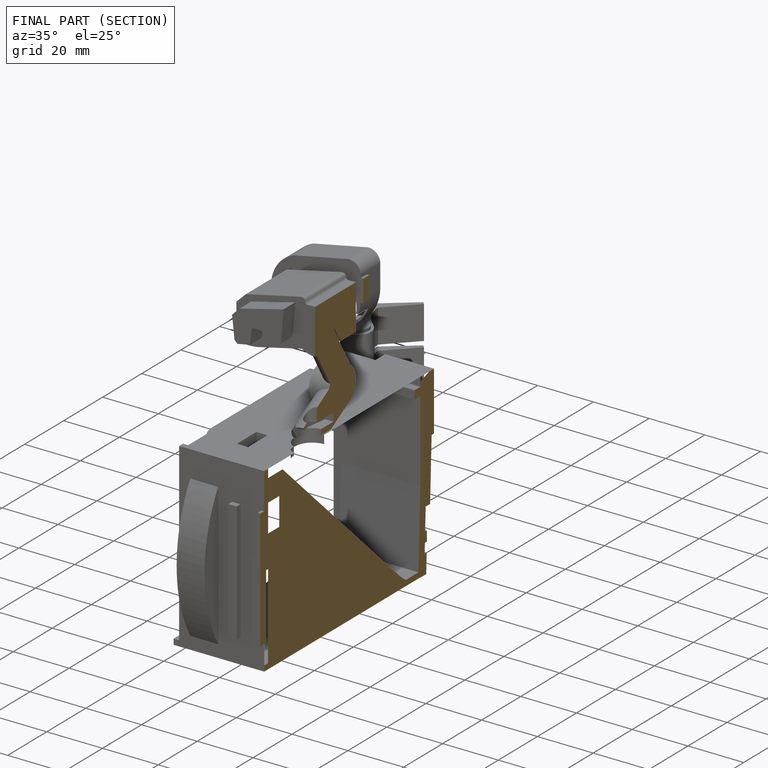
[diagram: finished part — half-section view (interior)]
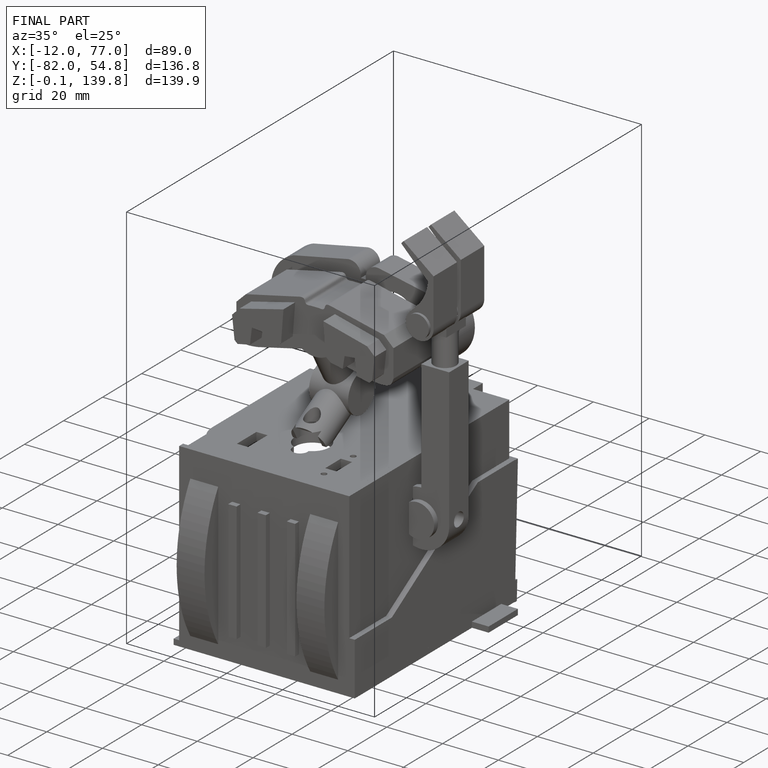
[diagram: finished part — iso view with bounding-box wireframe]
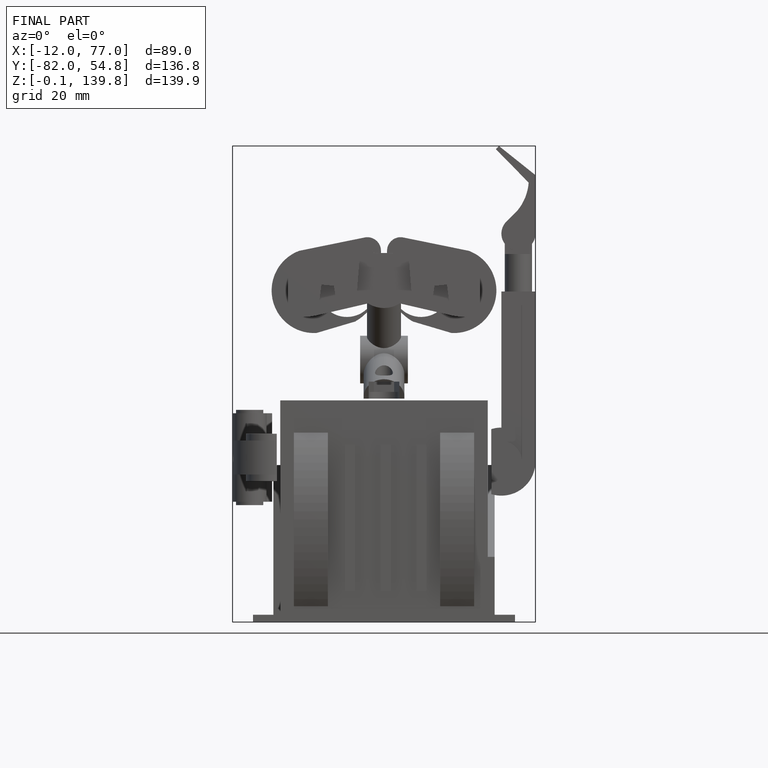
[diagram: finished part — front view with bounding-box wireframe]
